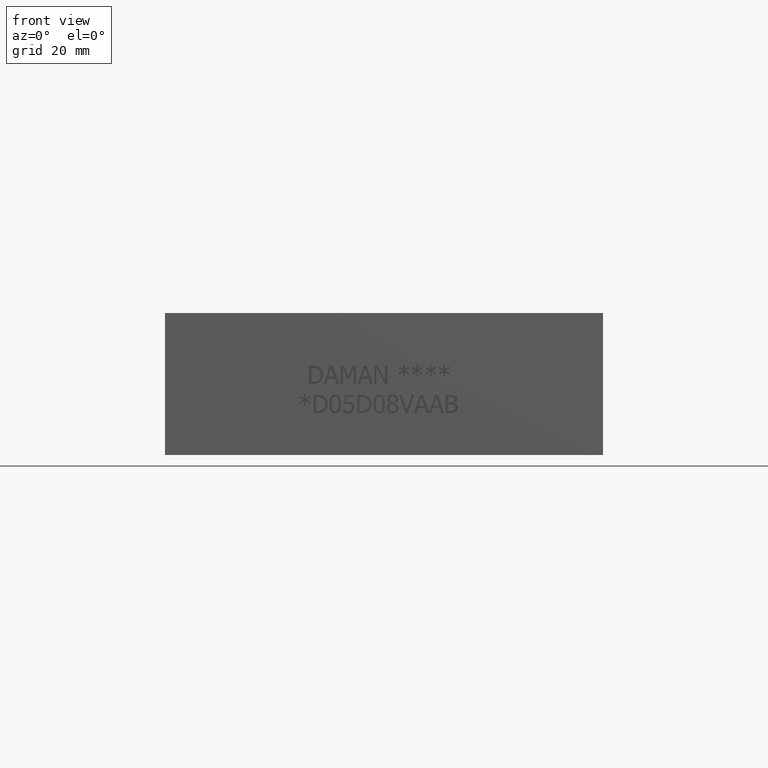
[diagram: clean part render]
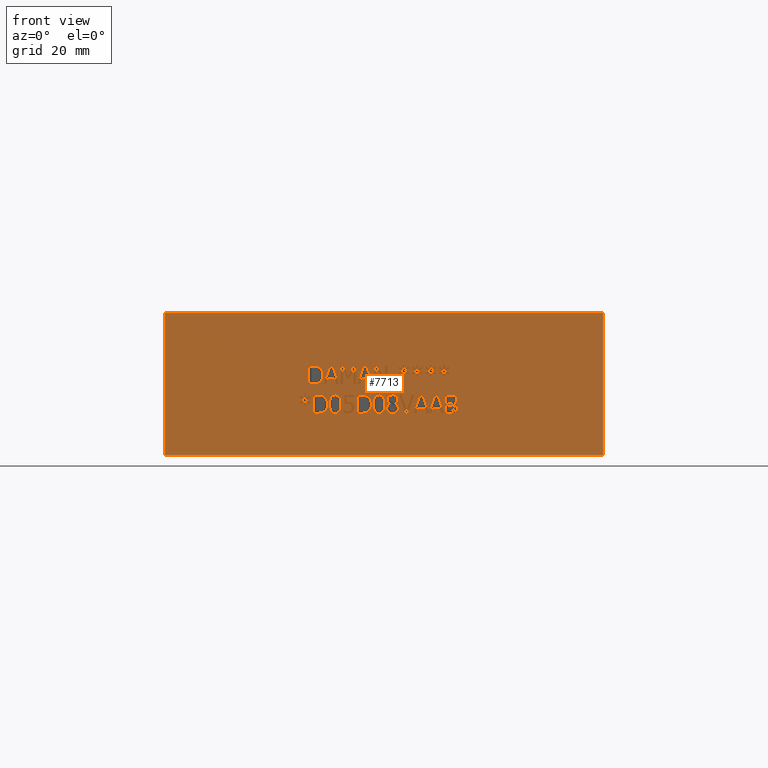
[diagram: same view with one face highlighted and labeled with its STEP entity id]
A machine part, front view. The second image highlights one B-rep face of the part: STEP entity #7713.
In plain terms, the highlighted planar face has unit normal (0, -1, 0).
Its self-contained STEP definition (entity closure, byte-faithful):
#216=FACE_BOUND('',#1150,.T.);
#217=FACE_BOUND('',#1151,.T.);
#218=FACE_BOUND('',#1152,.T.);
#219=FACE_BOUND('',#1153,.T.);
#220=FACE_BOUND('',#1154,.T.);
#221=FACE_BOUND('',#1155,.T.);
#222=FACE_BOUND('',#1156,.T.);
#223=FACE_BOUND('',#1157,.T.);
#224=FACE_BOUND('',#1158,.T.);
#225=FACE_BOUND('',#1159,.T.);
#226=FACE_BOUND('',#1160,.T.);
#227=FACE_BOUND('',#1161,.T.);
#228=FACE_BOUND('',#1162,.T.);
#229=FACE_BOUND('',#1163,.T.);
#230=FACE_BOUND('',#1164,.T.);
#231=FACE_BOUND('',#1165,.T.);
#232=FACE_BOUND('',#1166,.T.);
#233=FACE_BOUND('',#1167,.T.);
#234=FACE_BOUND('',#1168,.T.);
#280=B_SPLINE_CURVE_WITH_KNOTS('',2,(#10114,#10115,#10116,#10117),
 .UNSPECIFIED.,.F.,.F.,(3,1,3),(0.,1.,2.),.UNSPECIFIED.);
#282=B_SPLINE_CURVE_WITH_KNOTS('',2,(#10135,#10136,#10137,#10138),
 .UNSPECIFIED.,.F.,.F.,(3,1,3),(0.,1.,2.),.UNSPECIFIED.);
#284=B_SPLINE_CURVE_WITH_KNOTS('',2,(#10154,#10155,#10156,#10157),
 .UNSPECIFIED.,.F.,.F.,(3,1,3),(0.,1.,2.),.UNSPECIFIED.);
#286=B_SPLINE_CURVE_WITH_KNOTS('',2,(#10203,#10204,#10205,#10206),
 .UNSPECIFIED.,.F.,.F.,(3,1,3),(0.,1.,2.),.UNSPECIFIED.);
#288=B_SPLINE_CURVE_WITH_KNOTS('',2,(#10222,#10223,#10224,#10225),
 .UNSPECIFIED.,.F.,.F.,(3,1,3),(0.,1.,2.),.UNSPECIFIED.);
#290=B_SPLINE_CURVE_WITH_KNOTS('',2,(#10241,#10242,#10243,#10244),
 .UNSPECIFIED.,.F.,.F.,(3,1,3),(0.,1.,2.),.UNSPECIFIED.);
#292=B_SPLINE_CURVE_WITH_KNOTS('',2,(#10260,#10261,#10262,#10263),
 .UNSPECIFIED.,.F.,.F.,(3,1,3),(0.,1.,2.),.UNSPECIFIED.);
#294=B_SPLINE_CURVE_WITH_KNOTS('',2,(#10279,#10280,#10281,#10282),
 .UNSPECIFIED.,.F.,.F.,(3,1,3),(0.,1.,2.),.UNSPECIFIED.);
#296=B_SPLINE_CURVE_WITH_KNOTS('',2,(#10298,#10299,#10300,#10301),
 .UNSPECIFIED.,.F.,.F.,(3,1,3),(0.,1.,2.),.UNSPECIFIED.);
#298=B_SPLINE_CURVE_WITH_KNOTS('',2,(#10317,#10318,#10319,#10320),
 .UNSPECIFIED.,.F.,.F.,(3,1,3),(0.,1.,2.),.UNSPECIFIED.);
#300=B_SPLINE_CURVE_WITH_KNOTS('',2,(#10348,#10349,#10350,#10351),
 .UNSPECIFIED.,.F.,.F.,(3,1,3),(0.,1.,2.),.UNSPECIFIED.);
#302=B_SPLINE_CURVE_WITH_KNOTS('',2,(#10367,#10368,#10369,#10370),
 .UNSPECIFIED.,.F.,.F.,(3,1,3),(0.,1.,2.),.UNSPECIFIED.);
#304=B_SPLINE_CURVE_WITH_KNOTS('',2,(#10385,#10386,#10387,#10388),
 .UNSPECIFIED.,.F.,.F.,(3,1,3),(0.,1.,2.),.UNSPECIFIED.);
#322=B_SPLINE_CURVE_WITH_KNOTS('',2,(#10556,#10557,#10558,#10559),
 .UNSPECIFIED.,.F.,.F.,(3,1,3),(0.,1.,2.),.UNSPECIFIED.);
#324=B_SPLINE_CURVE_WITH_KNOTS('',2,(#10577,#10578,#10579,#10580),
 .UNSPECIFIED.,.F.,.F.,(3,1,3),(0.,1.,2.),.UNSPECIFIED.);
#326=B_SPLINE_CURVE_WITH_KNOTS('',2,(#10596,#10597,#10598,#10599),
 .UNSPECIFIED.,.F.,.F.,(3,1,3),(0.,1.,2.),.UNSPECIFIED.);
#328=B_SPLINE_CURVE_WITH_KNOTS('',2,(#10614,#10615,#10616,#10617),
 .UNSPECIFIED.,.F.,.F.,(3,1,3),(0.,1.,2.),.UNSPECIFIED.);
#338=B_SPLINE_CURVE_WITH_KNOTS('',2,(#10727,#10728,#10729,#10730),
 .UNSPECIFIED.,.F.,.F.,(3,1,3),(0.,1.,2.),.UNSPECIFIED.);
#340=B_SPLINE_CURVE_WITH_KNOTS('',2,(#10748,#10749,#10750,#10751),
 .UNSPECIFIED.,.F.,.F.,(3,1,3),(0.,1.,2.),.UNSPECIFIED.);
#342=B_SPLINE_CURVE_WITH_KNOTS('',2,(#10785,#10786,#10787,#10788),
 .UNSPECIFIED.,.F.,.F.,(3,1,3),(0.,1.,2.),.UNSPECIFIED.);
#344=B_SPLINE_CURVE_WITH_KNOTS('',2,(#10803,#10804,#10805,#10806),
 .UNSPECIFIED.,.F.,.F.,(3,1,3),(0.,1.,2.),.UNSPECIFIED.);
#354=B_SPLINE_CURVE_WITH_KNOTS('',2,(#11025,#11026,#11027,#11028),
 .UNSPECIFIED.,.F.,.F.,(3,1,3),(0.,1.,2.),.UNSPECIFIED.);
#356=B_SPLINE_CURVE_WITH_KNOTS('',2,(#11046,#11047,#11048,#11049),
 .UNSPECIFIED.,.F.,.F.,(3,1,3),(0.,1.,2.),.UNSPECIFIED.);
#358=B_SPLINE_CURVE_WITH_KNOTS('',2,(#11083,#11084,#11085,#11086),
 .UNSPECIFIED.,.F.,.F.,(3,1,3),(0.,1.,2.),.UNSPECIFIED.);
#360=B_SPLINE_CURVE_WITH_KNOTS('',2,(#11101,#11102,#11103,#11104),
 .UNSPECIFIED.,.F.,.F.,(3,1,3),(0.,1.,2.),.UNSPECIFIED.);
#378=B_SPLINE_CURVE_WITH_KNOTS('',2,(#11272,#11273,#11274,#11275),
 .UNSPECIFIED.,.F.,.F.,(3,1,3),(0.,1.,2.),.UNSPECIFIED.);
#380=B_SPLINE_CURVE_WITH_KNOTS('',2,(#11293,#11294,#11295,#11296),
 .UNSPECIFIED.,.F.,.F.,(3,1,3),(0.,1.,2.),.UNSPECIFIED.);
#382=B_SPLINE_CURVE_WITH_KNOTS('',2,(#11312,#11313,#11314,#11315),
 .UNSPECIFIED.,.F.,.F.,(3,1,3),(0.,1.,2.),.UNSPECIFIED.);
#384=B_SPLINE_CURVE_WITH_KNOTS('',2,(#11330,#11331,#11332,#11333),
 .UNSPECIFIED.,.F.,.F.,(3,1,3),(0.,1.,2.),.UNSPECIFIED.);
#406=B_SPLINE_CURVE_WITH_KNOTS('',2,(#11539,#11540,#11541,#11542),
 .UNSPECIFIED.,.F.,.F.,(3,1,3),(0.,1.,2.),.UNSPECIFIED.);
#408=B_SPLINE_CURVE_WITH_KNOTS('',2,(#11560,#11561,#11562,#11563),
 .UNSPECIFIED.,.F.,.F.,(3,1,3),(0.,1.,2.),.UNSPECIFIED.);
#410=B_SPLINE_CURVE_WITH_KNOTS('',2,(#11585,#11586,#11587,#11588),
 .UNSPECIFIED.,.F.,.F.,(3,1,3),(0.,1.,2.),.UNSPECIFIED.);
#412=B_SPLINE_CURVE_WITH_KNOTS('',2,(#11604,#11605,#11606,#11607),
 .UNSPECIFIED.,.F.,.F.,(3,1,3),(0.,1.,2.),.UNSPECIFIED.);
#414=B_SPLINE_CURVE_WITH_KNOTS('',2,(#11623,#11624,#11625,#11626),
 .UNSPECIFIED.,.F.,.F.,(3,1,3),(0.,1.,2.),.UNSPECIFIED.);
#416=B_SPLINE_CURVE_WITH_KNOTS('',2,(#11642,#11643,#11644,#11645),
 .UNSPECIFIED.,.F.,.F.,(3,1,3),(0.,1.,2.),.UNSPECIFIED.);
#418=B_SPLINE_CURVE_WITH_KNOTS('',2,(#11667,#11668,#11669,#11670),
 .UNSPECIFIED.,.F.,.F.,(3,1,3),(0.,1.,2.),.UNSPECIFIED.);
#420=B_SPLINE_CURVE_WITH_KNOTS('',2,(#11686,#11687,#11688,#11689),
 .UNSPECIFIED.,.F.,.F.,(3,1,3),(0.,1.,2.),.UNSPECIFIED.);
#422=B_SPLINE_CURVE_WITH_KNOTS('',2,(#11704,#11705,#11706,#11707),
 .UNSPECIFIED.,.F.,.F.,(3,1,3),(0.,1.,2.),.UNSPECIFIED.);
#440=B_SPLINE_CURVE_WITH_KNOTS('',2,(#12038,#12039,#12040,#12041),
 .UNSPECIFIED.,.F.,.F.,(3,1,3),(0.,1.,2.),.UNSPECIFIED.);
#442=B_SPLINE_CURVE_WITH_KNOTS('',2,(#12065,#12066,#12067,#12068),
 .UNSPECIFIED.,.F.,.F.,(3,1,3),(0.,1.,2.),.UNSPECIFIED.);
#444=B_SPLINE_CURVE_WITH_KNOTS('',2,(#12084,#12085,#12086,#12087),
 .UNSPECIFIED.,.F.,.F.,(3,1,3),(0.,1.,2.),.UNSPECIFIED.);
#446=B_SPLINE_CURVE_WITH_KNOTS('',2,(#12103,#12104,#12105,#12106),
 .UNSPECIFIED.,.F.,.F.,(3,1,3),(0.,1.,2.),.UNSPECIFIED.);
#448=B_SPLINE_CURVE_WITH_KNOTS('',2,(#12140,#12141,#12142,#12143),
 .UNSPECIFIED.,.F.,.F.,(3,1,3),(0.,1.,2.),.UNSPECIFIED.);
#450=B_SPLINE_CURVE_WITH_KNOTS('',2,(#12158,#12159,#12160,#12161),
 .UNSPECIFIED.,.F.,.F.,(3,1,3),(0.,1.,2.),.UNSPECIFIED.);
#452=B_SPLINE_CURVE_WITH_KNOTS('',2,(#12286,#12287,#12288,#12289),
 .UNSPECIFIED.,.F.,.F.,(3,1,3),(0.,1.,2.),.UNSPECIFIED.);
#453=B_SPLINE_CURVE_WITH_KNOTS('',2,(#12291,#12292,#12293,#12294),
 .UNSPECIFIED.,.F.,.F.,(3,1,3),(0.,1.,2.),.UNSPECIFIED.);
#454=B_SPLINE_CURVE_WITH_KNOTS('',2,(#12296,#12297,#12298,#12299),
 .UNSPECIFIED.,.F.,.F.,(3,1,3),(0.,1.,2.),.UNSPECIFIED.);
#455=B_SPLINE_CURVE_WITH_KNOTS('',2,(#12306,#12307,#12308,#12309),
 .UNSPECIFIED.,.F.,.F.,(3,1,3),(0.,1.,2.),.UNSPECIFIED.);
#735=FACE_OUTER_BOUND('',#1149,.T.);
#1149=EDGE_LOOP('',(#5615,#5616,#5617,#5618));
#1150=EDGE_LOOP('',(#5619,#5620,#5621,#5622,#5623,#5624,#5625));
#1151=EDGE_LOOP('',(#5626,#5627,#5628,#5629,#5630,#5631,#5632,#5633,#5634,
#5635,#5636,#5637,#5638,#5639,#5640,#5641,#5642,#5643,#5644,#5645));
#1152=EDGE_LOOP('',(#5646,#5647,#5648,#5649));
#1153=EDGE_LOOP('',(#5650,#5651,#5652,#5653,#5654,#5655,#5656));
#1154=EDGE_LOOP('',(#5657,#5658,#5659,#5660,#5661,#5662,#5663,#5664,#5665,
#5666,#5667,#5668,#5669,#5670,#5671,#5672,#5673,#5674));
#1155=EDGE_LOOP('',(#5675,#5676,#5677,#5678,#5679,#5680,#5681));
#1156=EDGE_LOOP('',(#5682,#5683,#5684,#5685));
#1157=EDGE_LOOP('',(#5686,#5687,#5688,#5689,#5690,#5691,#5692,#5693,#5694,
#5695,#5696));
#1158=EDGE_LOOP('',(#5697,#5698,#5699,#5700,#5701,#5702,#5703,#5704,#5705,
#5706,#5707,#5708,#5709,#5710,#5711));
#1159=EDGE_LOOP('',(#5712,#5713,#5714,#5715,#5716,#5717,#5718,#5719,#5720,
#5721));
#1160=EDGE_LOOP('',(#5722,#5723,#5724,#5725,#5726,#5727,#5728,#5729,#5730,
#5731,#5732,#5733,#5734,#5735,#5736,#5737,#5738,#5739));
#1161=EDGE_LOOP('',(#5740,#5741,#5742,#5743,#5744,#5745,#5746,#5747,#5748,
#5749,#5750,#5751,#5752,#5753,#5754,#5755,#5756,#5757));
#1162=EDGE_LOOP('',(#5758,#5759,#5760,#5761,#5762,#5763,#5764,#5765,#5766,
#5767));
#1163=EDGE_LOOP('',(#5768,#5769,#5770,#5771,#5772,#5773,#5774,#5775));
#1164=EDGE_LOOP('',(#5776,#5777,#5778,#5779,#5780,#5781,#5782));
#1165=EDGE_LOOP('',(#5783,#5784,#5785,#5786,#5787,#5788,#5789,#5790));
#1166=EDGE_LOOP('',(#5791,#5792,#5793,#5794,#5795,#5796,#5797,#5798,#5799,
#5800,#5801,#5802,#5803));
#1167=EDGE_LOOP('',(#5804,#5805,#5806,#5807,#5808,#5809,#5810,#5811,#5812,
#5813,#5814,#5815,#5816,#5817,#5818,#5819,#5820,#5821));
#1168=EDGE_LOOP('',(#5822,#5823,#5824,#5825,#5826,#5827,#5828,#5829,#5830,
#5831,#5832,#5833,#5834,#5835,#5836,#5837,#5838,#5839));
#1444=LINE('',#10064,#2206);
#1448=LINE('',#10072,#2210);
#1451=LINE('',#10078,#2213);
#1454=LINE('',#10084,#2216);
#1457=LINE('',#10090,#2219);
#1460=LINE('',#10096,#2222);
#1463=LINE('',#10101,#2225);
#1469=LINE('',#10166,#2231);
#1472=LINE('',#10172,#2234);
#1475=LINE('',#10178,#2237);
#1478=LINE('',#10184,#2240);
#1481=LINE('',#10190,#2243);
#1491=LINE('',#10329,#2253);
#1494=LINE('',#10335,#2256);
#1527=LINE('',#10760,#2289);
#1530=LINE('',#10766,#2292);
#1533=LINE('',#10772,#2295);
#1537=LINE('',#10815,#2299);
#1541=LINE('',#10823,#2303);
#1544=LINE('',#10829,#2306);
#1547=LINE('',#10835,#2309);
#1550=LINE('',#10841,#2312);
#1553=LINE('',#10847,#2315);
#1556=LINE('',#10853,#2318);
#1559=LINE('',#10859,#2321);
#1562=LINE('',#10865,#2324);
#1565=LINE('',#10871,#2327);
#1568=LINE('',#10877,#2330);
#1571=LINE('',#10883,#2333);
#1574=LINE('',#10889,#2336);
#1577=LINE('',#10895,#2339);
#1580=LINE('',#10901,#2342);
#1583=LINE('',#10907,#2345);
#1586=LINE('',#10913,#2348);
#1589=LINE('',#10918,#2351);
#1607=LINE('',#11058,#2369);
#1610=LINE('',#11064,#2372);
#1613=LINE('',#11070,#2375);
#1642=LINE('',#11572,#2404);
#1649=LINE('',#11654,#2411);
#1666=LINE('',#11739,#2428);
#1667=LINE('',#11743,#2429);
#1671=LINE('',#11751,#2433);
#1674=LINE('',#11757,#2436);
#1677=LINE('',#11763,#2439);
#1680=LINE('',#11769,#2442);
#1683=LINE('',#11774,#2445);
#1685=LINE('',#11778,#2447);
#1697=LINE('',#11803,#2459);
#1701=LINE('',#11811,#2463);
#1704=LINE('',#11817,#2466);
#1707=LINE('',#11822,#2469);
#1709=LINE('',#11826,#2471);
#1712=LINE('',#11832,#2474);
#1715=LINE('',#11837,#2477);
#1745=LINE('',#12052,#2507);
#1751=LINE('',#12115,#2513);
#1754=LINE('',#12121,#2516);
#1757=LINE('',#12127,#2519);
#1761=LINE('',#12170,#2523);
#1762=LINE('',#12172,#2524);
#1763=LINE('',#12174,#2525);
#1764=LINE('',#12175,#2526);
#1765=LINE('',#12178,#2527);
#1766=LINE('',#12180,#2528);
#1767=LINE('',#12182,#2529);
#1768=LINE('',#12184,#2530);
#1769=LINE('',#12186,#2531);
#1770=LINE('',#12188,#2532);
#1771=LINE('',#12190,#2533);
#1772=LINE('',#12192,#2534);
#1773=LINE('',#12194,#2535);
#1774=LINE('',#12196,#2536);
#1775=LINE('',#12198,#2537);
#1776=LINE('',#12200,#2538);
#1777=LINE('',#12202,#2539);
#1778=LINE('',#12204,#2540);
#1779=LINE('',#12206,#2541);
#1780=LINE('',#12208,#2542);
#1781=LINE('',#12210,#2543);
#1782=LINE('',#12211,#2544);
#1783=LINE('',#12214,#2545);
#1784=LINE('',#12216,#2546);
#1785=LINE('',#12218,#2547);
#1786=LINE('',#12220,#2548);
#1787=LINE('',#12222,#2549);
#1788=LINE('',#12224,#2550);
#1789=LINE('',#12226,#2551);
#1790=LINE('',#12228,#2552);
#1791=LINE('',#12230,#2553);
#1792=LINE('',#12232,#2554);
#1793=LINE('',#12234,#2555);
#1794=LINE('',#12236,#2556);
#1795=LINE('',#12238,#2557);
#1796=LINE('',#12240,#2558);
#1797=LINE('',#12242,#2559);
#1798=LINE('',#12244,#2560);
#1799=LINE('',#12246,#2561);
#1800=LINE('',#12247,#2562);
#1801=LINE('',#12250,#2563);
#1802=LINE('',#12252,#2564);
#1803=LINE('',#12254,#2565);
#1804=LINE('',#12256,#2566);
#1805=LINE('',#12258,#2567);
#1806=LINE('',#12260,#2568);
#1807=LINE('',#12262,#2569);
#1808=LINE('',#12264,#2570);
#1809=LINE('',#12266,#2571);
#1810=LINE('',#12267,#2572);
#1811=LINE('',#12270,#2573);
#1812=LINE('',#12272,#2574);
#1813=LINE('',#12274,#2575);
#1814=LINE('',#12276,#2576);
#1815=LINE('',#12278,#2577);
#1816=LINE('',#12280,#2578);
#1817=LINE('',#12282,#2579);
#1818=LINE('',#12283,#2580);
#1819=LINE('',#12301,#2581);
#1820=LINE('',#12303,#2582);
#1821=LINE('',#12305,#2583);
#1822=LINE('',#12312,#2584);
#1823=LINE('',#12314,#2585);
#1824=LINE('',#12316,#2586);
#1825=LINE('',#12318,#2587);
#1826=LINE('',#12320,#2588);
#1827=LINE('',#12322,#2589);
#1828=LINE('',#12324,#2590);
#1829=LINE('',#12325,#2591);
#1830=LINE('',#12328,#2592);
#1831=LINE('',#12330,#2593);
#1832=LINE('',#12332,#2594);
#1833=LINE('',#12334,#2595);
#1834=LINE('',#12336,#2596);
#1835=LINE('',#12338,#2597);
#1836=LINE('',#12340,#2598);
#1837=LINE('',#12342,#2599);
#1838=LINE('',#12344,#2600);
#1839=LINE('',#12346,#2601);
#1840=LINE('',#12348,#2602);
#1841=LINE('',#12350,#2603);
#1842=LINE('',#12351,#2604);
#1843=LINE('',#12354,#2605);
#1844=LINE('',#12356,#2606);
#1845=LINE('',#12358,#2607);
#1846=LINE('',#12360,#2608);
#1847=LINE('',#12362,#2609);
#1848=LINE('',#12364,#2610);
#1849=LINE('',#12366,#2611);
#1850=LINE('',#12368,#2612);
#1851=LINE('',#12370,#2613);
#1852=LINE('',#12372,#2614);
#1853=LINE('',#12374,#2615);
#1854=LINE('',#12376,#2616);
#1855=LINE('',#12378,#2617);
#1856=LINE('',#12380,#2618);
#1857=LINE('',#12382,#2619);
#1858=LINE('',#12384,#2620);
#1859=LINE('',#12386,#2621);
#1860=LINE('',#12387,#2622);
#1861=LINE('',#12390,#2623);
#1862=LINE('',#12392,#2624);
#1863=LINE('',#12394,#2625);
#1864=LINE('',#12396,#2626);
#1865=LINE('',#12398,#2627);
#1866=LINE('',#12400,#2628);
#1867=LINE('',#12402,#2629);
#1868=LINE('',#12404,#2630);
#1869=LINE('',#12406,#2631);
#1870=LINE('',#12408,#2632);
#1871=LINE('',#12410,#2633);
#1872=LINE('',#12412,#2634);
#1873=LINE('',#12414,#2635);
#1874=LINE('',#12416,#2636);
#1875=LINE('',#12418,#2637);
#1876=LINE('',#12420,#2638);
#1877=LINE('',#12422,#2639);
#1878=LINE('',#12423,#2640);
#2206=VECTOR('',#8408,10.);
#2210=VECTOR('',#8414,10.);
#2213=VECTOR('',#8419,10.);
#2216=VECTOR('',#8424,10.);
#2219=VECTOR('',#8429,10.);
#2222=VECTOR('',#8434,10.);
#2225=VECTOR('',#8439,10.);
#2231=VECTOR('',#8449,10.);
#2234=VECTOR('',#8454,10.);
#2237=VECTOR('',#8459,10.);
#2240=VECTOR('',#8464,10.);
#2243=VECTOR('',#8469,10.);
#2253=VECTOR('',#8481,10.);
#2256=VECTOR('',#8486,10.);
#2289=VECTOR('',#8531,10.);
#2292=VECTOR('',#8536,10.);
#2295=VECTOR('',#8541,10.);
#2299=VECTOR('',#8549,10.);
#2303=VECTOR('',#8555,10.);
#2306=VECTOR('',#8560,10.);
#2309=VECTOR('',#8565,10.);
#2312=VECTOR('',#8570,10.);
#2315=VECTOR('',#8575,10.);
#2318=VECTOR('',#8580,10.);
#2321=VECTOR('',#8585,10.);
#2324=VECTOR('',#8590,10.);
#2327=VECTOR('',#8595,10.);
#2330=VECTOR('',#8600,10.);
#2333=VECTOR('',#8605,10.);
#2336=VECTOR('',#8610,10.);
#2339=VECTOR('',#8615,10.);
#2342=VECTOR('',#8620,10.);
#2345=VECTOR('',#8625,10.);
#2348=VECTOR('',#8630,10.);
#2351=VECTOR('',#8635,10.);
#2369=VECTOR('',#8663,10.);
#2372=VECTOR('',#8668,10.);
#2375=VECTOR('',#8673,10.);
#2404=VECTOR('',#8708,10.);
#2411=VECTOR('',#8717,10.);
#2428=VECTOR('',#8744,10.);
#2429=VECTOR('',#8747,10.);
#2433=VECTOR('',#8753,10.);
#2436=VECTOR('',#8758,10.);
#2439=VECTOR('',#8763,10.);
#2442=VECTOR('',#8768,10.);
#2445=VECTOR('',#8773,10.);
#2447=VECTOR('',#8777,10.);
#2459=VECTOR('',#8797,10.);
#2463=VECTOR('',#8803,10.);
#2466=VECTOR('',#8808,10.);
#2469=VECTOR('',#8813,10.);
#2471=VECTOR('',#8817,10.);
#2474=VECTOR('',#8822,10.);
#2477=VECTOR('',#8827,10.);
#2507=VECTOR('',#8873,10.);
#2513=VECTOR('',#8881,10.);
#2516=VECTOR('',#8886,10.);
#2519=VECTOR('',#8891,10.);
#2523=VECTOR('',#8899,10.);
#2524=VECTOR('',#8900,10.);
#2525=VECTOR('',#8901,10.);
#2526=VECTOR('',#8902,10.);
#2527=VECTOR('',#8903,10.);
#2528=VECTOR('',#8904,10.);
#2529=VECTOR('',#8905,10.);
#2530=VECTOR('',#8906,10.);
#2531=VECTOR('',#8907,10.);
#2532=VECTOR('',#8908,10.);
#2533=VECTOR('',#8909,10.);
#2534=VECTOR('',#8910,10.);
#2535=VECTOR('',#8911,10.);
#2536=VECTOR('',#8912,10.);
#2537=VECTOR('',#8913,10.);
#2538=VECTOR('',#8914,10.);
#2539=VECTOR('',#8915,10.);
#2540=VECTOR('',#8916,10.);
#2541=VECTOR('',#8917,10.);
#2542=VECTOR('',#8918,10.);
#2543=VECTOR('',#8919,10.);
#2544=VECTOR('',#8920,10.);
#2545=VECTOR('',#8921,10.);
#2546=VECTOR('',#8922,10.);
#2547=VECTOR('',#8923,10.);
#2548=VECTOR('',#8924,10.);
#2549=VECTOR('',#8925,10.);
#2550=VECTOR('',#8926,10.);
#2551=VECTOR('',#8927,10.);
#2552=VECTOR('',#8928,10.);
#2553=VECTOR('',#8929,10.);
#2554=VECTOR('',#8930,10.);
#2555=VECTOR('',#8931,10.);
#2556=VECTOR('',#8932,10.);
#2557=VECTOR('',#8933,10.);
#2558=VECTOR('',#8934,10.);
#2559=VECTOR('',#8935,10.);
#2560=VECTOR('',#8936,10.);
#2561=VECTOR('',#8937,10.);
#2562=VECTOR('',#8938,10.);
#2563=VECTOR('',#8939,10.);
#2564=VECTOR('',#8940,10.);
#2565=VECTOR('',#8941,10.);
#2566=VECTOR('',#8942,10.);
#2567=VECTOR('',#8943,10.);
#2568=VECTOR('',#8944,10.);
#2569=VECTOR('',#8945,10.);
#2570=VECTOR('',#8946,10.);
#2571=VECTOR('',#8947,10.);
#2572=VECTOR('',#8948,10.);
#2573=VECTOR('',#8949,10.);
#2574=VECTOR('',#8950,10.);
#2575=VECTOR('',#8951,10.);
#2576=VECTOR('',#8952,10.);
#2577=VECTOR('',#8953,10.);
#2578=VECTOR('',#8954,10.);
#2579=VECTOR('',#8955,10.);
#2580=VECTOR('',#8956,10.);
#2581=VECTOR('',#8957,10.);
#2582=VECTOR('',#8958,10.);
#2583=VECTOR('',#8959,10.);
#2584=VECTOR('',#8960,10.);
#2585=VECTOR('',#8961,10.);
#2586=VECTOR('',#8962,10.);
#2587=VECTOR('',#8963,10.);
#2588=VECTOR('',#8964,10.);
#2589=VECTOR('',#8965,10.);
#2590=VECTOR('',#8966,10.);
#2591=VECTOR('',#8967,10.);
#2592=VECTOR('',#8968,10.);
#2593=VECTOR('',#8969,10.);
#2594=VECTOR('',#8970,10.);
#2595=VECTOR('',#8971,10.);
#2596=VECTOR('',#8972,10.);
#2597=VECTOR('',#8973,10.);
#2598=VECTOR('',#8974,10.);
#2599=VECTOR('',#8975,10.);
#2600=VECTOR('',#8976,10.);
#2601=VECTOR('',#8977,10.);
#2602=VECTOR('',#8978,10.);
#2603=VECTOR('',#8979,10.);
#2604=VECTOR('',#8980,10.);
#2605=VECTOR('',#8981,10.);
#2606=VECTOR('',#8982,10.);
#2607=VECTOR('',#8983,10.);
#2608=VECTOR('',#8984,10.);
#2609=VECTOR('',#8985,10.);
#2610=VECTOR('',#8986,10.);
#2611=VECTOR('',#8987,10.);
#2612=VECTOR('',#8988,10.);
#2613=VECTOR('',#8989,10.);
#2614=VECTOR('',#8990,10.);
#2615=VECTOR('',#8991,10.);
#2616=VECTOR('',#8992,10.);
#2617=VECTOR('',#8993,10.);
#2618=VECTOR('',#8994,10.);
#2619=VECTOR('',#8995,10.);
#2620=VECTOR('',#8996,10.);
#2621=VECTOR('',#8997,10.);
#2622=VECTOR('',#8998,10.);
#2623=VECTOR('',#8999,10.);
#2624=VECTOR('',#9000,10.);
#2625=VECTOR('',#9001,10.);
#2626=VECTOR('',#9002,10.);
#2627=VECTOR('',#9003,10.);
#2628=VECTOR('',#9004,10.);
#2629=VECTOR('',#9005,10.);
#2630=VECTOR('',#9006,10.);
#2631=VECTOR('',#9007,10.);
#2632=VECTOR('',#9008,10.);
#2633=VECTOR('',#9009,10.);
#2634=VECTOR('',#9010,10.);
#2635=VECTOR('',#9011,10.);
#2636=VECTOR('',#9012,10.);
#2637=VECTOR('',#9013,10.);
#2638=VECTOR('',#9014,10.);
#2639=VECTOR('',#9015,10.);
#2640=VECTOR('',#9016,10.);
#2968=VERTEX_POINT('',#10062);
#2969=VERTEX_POINT('',#10063);
#2972=VERTEX_POINT('',#10071);
#2974=VERTEX_POINT('',#10077);
#2976=VERTEX_POINT('',#10083);
#2978=VERTEX_POINT('',#10089);
#2980=VERTEX_POINT('',#10095);
#2982=VERTEX_POINT('',#10112);
#2983=VERTEX_POINT('',#10113);
#2986=VERTEX_POINT('',#10134);
#2988=VERTEX_POINT('',#10153);
#2990=VERTEX_POINT('',#10165);
#2992=VERTEX_POINT('',#10171);
#2994=VERTEX_POINT('',#10177);
#2996=VERTEX_POINT('',#10183);
#2998=VERTEX_POINT('',#10189);
#3000=VERTEX_POINT('',#10202);
#3002=VERTEX_POINT('',#10221);
#3004=VERTEX_POINT('',#10240);
#3006=VERTEX_POINT('',#10259);
#3008=VERTEX_POINT('',#10278);
#3010=VERTEX_POINT('',#10297);
#3012=VERTEX_POINT('',#10316);
#3014=VERTEX_POINT('',#10328);
#3016=VERTEX_POINT('',#10334);
#3018=VERTEX_POINT('',#10347);
#3020=VERTEX_POINT('',#10366);
#3038=VERTEX_POINT('',#10554);
#3039=VERTEX_POINT('',#10555);
#3042=VERTEX_POINT('',#10576);
#3044=VERTEX_POINT('',#10595);
#3060=VERTEX_POINT('',#10725);
#3061=VERTEX_POINT('',#10726);
#3064=VERTEX_POINT('',#10747);
#3066=VERTEX_POINT('',#10759);
#3068=VERTEX_POINT('',#10765);
#3070=VERTEX_POINT('',#10771);
#3072=VERTEX_POINT('',#10784);
#3074=VERTEX_POINT('',#10813);
#3075=VERTEX_POINT('',#10814);
#3078=VERTEX_POINT('',#10822);
#3080=VERTEX_POINT('',#10828);
#3082=VERTEX_POINT('',#10834);
#3084=VERTEX_POINT('',#10840);
#3086=VERTEX_POINT('',#10846);
#3088=VERTEX_POINT('',#10852);
#3090=VERTEX_POINT('',#10858);
#3092=VERTEX_POINT('',#10864);
#3094=VERTEX_POINT('',#10870);
#3096=VERTEX_POINT('',#10876);
#3098=VERTEX_POINT('',#10882);
#3100=VERTEX_POINT('',#10888);
#3102=VERTEX_POINT('',#10894);
#3104=VERTEX_POINT('',#10900);
#3106=VERTEX_POINT('',#10906);
#3108=VERTEX_POINT('',#10912);
#3124=VERTEX_POINT('',#11023);
#3125=VERTEX_POINT('',#11024);
#3128=VERTEX_POINT('',#11045);
#3130=VERTEX_POINT('',#11057);
#3132=VERTEX_POINT('',#11063);
#3134=VERTEX_POINT('',#11069);
#3136=VERTEX_POINT('',#11082);
#3154=VERTEX_POINT('',#11270);
#3155=VERTEX_POINT('',#11271);
#3158=VERTEX_POINT('',#11292);
#3160=VERTEX_POINT('',#11311);
#3182=VERTEX_POINT('',#11537);
#3183=VERTEX_POINT('',#11538);
#3186=VERTEX_POINT('',#11559);
#3188=VERTEX_POINT('',#11571);
#3190=VERTEX_POINT('',#11584);
#3192=VERTEX_POINT('',#11603);
#3194=VERTEX_POINT('',#11622);
#3196=VERTEX_POINT('',#11641);
#3198=VERTEX_POINT('',#11653);
#3200=VERTEX_POINT('',#11666);
#3202=VERTEX_POINT('',#11685);
#3210=VERTEX_POINT('',#11732);
#3213=VERTEX_POINT('',#11737);
#3214=VERTEX_POINT('',#11741);
#3215=VERTEX_POINT('',#11742);
#3218=VERTEX_POINT('',#11750);
#3220=VERTEX_POINT('',#11756);
#3222=VERTEX_POINT('',#11762);
#3224=VERTEX_POINT('',#11768);
#3226=VERTEX_POINT('',#11777);
#3234=VERTEX_POINT('',#11801);
#3235=VERTEX_POINT('',#11802);
#3238=VERTEX_POINT('',#11810);
#3240=VERTEX_POINT('',#11816);
#3242=VERTEX_POINT('',#11825);
#3244=VERTEX_POINT('',#11831);
#3274=VERTEX_POINT('',#12036);
#3275=VERTEX_POINT('',#12037);
#3278=VERTEX_POINT('',#12051);
#3280=VERTEX_POINT('',#12064);
#3282=VERTEX_POINT('',#12083);
#3284=VERTEX_POINT('',#12102);
#3286=VERTEX_POINT('',#12114);
#3288=VERTEX_POINT('',#12120);
#3290=VERTEX_POINT('',#12126);
#3292=VERTEX_POINT('',#12139);
#3294=VERTEX_POINT('',#12168);
#3295=VERTEX_POINT('',#12169);
#3296=VERTEX_POINT('',#12171);
#3297=VERTEX_POINT('',#12173);
#3298=VERTEX_POINT('',#12176);
#3299=VERTEX_POINT('',#12177);
#3300=VERTEX_POINT('',#12179);
#3301=VERTEX_POINT('',#12181);
#3302=VERTEX_POINT('',#12183);
#3303=VERTEX_POINT('',#12185);
#3304=VERTEX_POINT('',#12187);
#3305=VERTEX_POINT('',#12189);
#3306=VERTEX_POINT('',#12191);
#3307=VERTEX_POINT('',#12193);
#3308=VERTEX_POINT('',#12195);
#3309=VERTEX_POINT('',#12197);
#3310=VERTEX_POINT('',#12199);
#3311=VERTEX_POINT('',#12201);
#3312=VERTEX_POINT('',#12203);
#3313=VERTEX_POINT('',#12205);
#3314=VERTEX_POINT('',#12207);
#3315=VERTEX_POINT('',#12209);
#3316=VERTEX_POINT('',#12212);
#3317=VERTEX_POINT('',#12213);
#3318=VERTEX_POINT('',#12215);
#3319=VERTEX_POINT('',#12217);
#3320=VERTEX_POINT('',#12219);
#3321=VERTEX_POINT('',#12221);
#3322=VERTEX_POINT('',#12223);
#3323=VERTEX_POINT('',#12225);
#3324=VERTEX_POINT('',#12227);
#3325=VERTEX_POINT('',#12229);
#3326=VERTEX_POINT('',#12231);
#3327=VERTEX_POINT('',#12233);
#3328=VERTEX_POINT('',#12235);
#3329=VERTEX_POINT('',#12237);
#3330=VERTEX_POINT('',#12239);
#3331=VERTEX_POINT('',#12241);
#3332=VERTEX_POINT('',#12243);
#3333=VERTEX_POINT('',#12245);
#3334=VERTEX_POINT('',#12248);
#3335=VERTEX_POINT('',#12249);
#3336=VERTEX_POINT('',#12251);
#3337=VERTEX_POINT('',#12253);
#3338=VERTEX_POINT('',#12255);
#3339=VERTEX_POINT('',#12257);
#3340=VERTEX_POINT('',#12259);
#3341=VERTEX_POINT('',#12261);
#3342=VERTEX_POINT('',#12263);
#3343=VERTEX_POINT('',#12265);
#3344=VERTEX_POINT('',#12268);
#3345=VERTEX_POINT('',#12269);
#3346=VERTEX_POINT('',#12271);
#3347=VERTEX_POINT('',#12273);
#3348=VERTEX_POINT('',#12275);
#3349=VERTEX_POINT('',#12277);
#3350=VERTEX_POINT('',#12279);
#3351=VERTEX_POINT('',#12281);
#3352=VERTEX_POINT('',#12284);
#3353=VERTEX_POINT('',#12285);
#3354=VERTEX_POINT('',#12290);
#3355=VERTEX_POINT('',#12295);
#3356=VERTEX_POINT('',#12300);
#3357=VERTEX_POINT('',#12302);
#3358=VERTEX_POINT('',#12304);
#3359=VERTEX_POINT('',#12310);
#3360=VERTEX_POINT('',#12311);
#3361=VERTEX_POINT('',#12313);
#3362=VERTEX_POINT('',#12315);
#3363=VERTEX_POINT('',#12317);
#3364=VERTEX_POINT('',#12319);
#3365=VERTEX_POINT('',#12321);
#3366=VERTEX_POINT('',#12323);
#3367=VERTEX_POINT('',#12326);
#3368=VERTEX_POINT('',#12327);
#3369=VERTEX_POINT('',#12329);
#3370=VERTEX_POINT('',#12331);
#3371=VERTEX_POINT('',#12333);
#3372=VERTEX_POINT('',#12335);
#3373=VERTEX_POINT('',#12337);
#3374=VERTEX_POINT('',#12339);
#3375=VERTEX_POINT('',#12341);
#3376=VERTEX_POINT('',#12343);
#3377=VERTEX_POINT('',#12345);
#3378=VERTEX_POINT('',#12347);
#3379=VERTEX_POINT('',#12349);
#3380=VERTEX_POINT('',#12352);
#3381=VERTEX_POINT('',#12353);
#3382=VERTEX_POINT('',#12355);
#3383=VERTEX_POINT('',#12357);
#3384=VERTEX_POINT('',#12359);
#3385=VERTEX_POINT('',#12361);
#3386=VERTEX_POINT('',#12363);
#3387=VERTEX_POINT('',#12365);
#3388=VERTEX_POINT('',#12367);
#3389=VERTEX_POINT('',#12369);
#3390=VERTEX_POINT('',#12371);
#3391=VERTEX_POINT('',#12373);
#3392=VERTEX_POINT('',#12375);
#3393=VERTEX_POINT('',#12377);
#3394=VERTEX_POINT('',#12379);
#3395=VERTEX_POINT('',#12381);
#3396=VERTEX_POINT('',#12383);
#3397=VERTEX_POINT('',#12385);
#3398=VERTEX_POINT('',#12388);
#3399=VERTEX_POINT('',#12389);
#3400=VERTEX_POINT('',#12391);
#3401=VERTEX_POINT('',#12393);
#3402=VERTEX_POINT('',#12395);
#3403=VERTEX_POINT('',#12397);
#3404=VERTEX_POINT('',#12399);
#3405=VERTEX_POINT('',#12401);
#3406=VERTEX_POINT('',#12403);
#3407=VERTEX_POINT('',#12405);
#3408=VERTEX_POINT('',#12407);
#3409=VERTEX_POINT('',#12409);
#3410=VERTEX_POINT('',#12411);
#3411=VERTEX_POINT('',#12413);
#3412=VERTEX_POINT('',#12415);
#3413=VERTEX_POINT('',#12417);
#3414=VERTEX_POINT('',#12419);
#3415=VERTEX_POINT('',#12421);
#3714=EDGE_CURVE('',#2968,#2969,#1444,.T.);
#3718=EDGE_CURVE('',#2972,#2968,#1448,.T.);
#3721=EDGE_CURVE('',#2974,#2972,#1451,.T.);
#3724=EDGE_CURVE('',#2976,#2974,#1454,.T.);
#3727=EDGE_CURVE('',#2978,#2976,#1457,.T.);
#3730=EDGE_CURVE('',#2980,#2978,#1460,.T.);
#3733=EDGE_CURVE('',#2969,#2980,#1463,.T.);
#3735=EDGE_CURVE('',#2982,#2983,#280,.T.);
#3739=EDGE_CURVE('',#2986,#2982,#282,.T.);
#3742=EDGE_CURVE('',#2988,#2986,#284,.T.);
#3745=EDGE_CURVE('',#2990,#2988,#1469,.T.);
#3748=EDGE_CURVE('',#2992,#2990,#1472,.T.);
#3751=EDGE_CURVE('',#2994,#2992,#1475,.T.);
#3754=EDGE_CURVE('',#2996,#2994,#1478,.T.);
#3757=EDGE_CURVE('',#2998,#2996,#1481,.T.);
#3760=EDGE_CURVE('',#3000,#2998,#286,.T.);
#3763=EDGE_CURVE('',#3002,#3000,#288,.T.);
#3766=EDGE_CURVE('',#3004,#3002,#290,.T.);
#3769=EDGE_CURVE('',#3006,#3004,#292,.T.);
#3772=EDGE_CURVE('',#3008,#3006,#294,.T.);
#3775=EDGE_CURVE('',#3010,#3008,#296,.T.);
#3778=EDGE_CURVE('',#3012,#3010,#298,.T.);
#3781=EDGE_CURVE('',#3014,#3012,#1491,.T.);
#3784=EDGE_CURVE('',#3016,#3014,#1494,.T.);
#3787=EDGE_CURVE('',#3018,#3016,#300,.T.);
#3790=EDGE_CURVE('',#3020,#3018,#302,.T.);
#3793=EDGE_CURVE('',#2983,#3020,#304,.T.);
#3819=EDGE_CURVE('',#3038,#3039,#322,.T.);
#3823=EDGE_CURVE('',#3042,#3038,#324,.T.);
#3826=EDGE_CURVE('',#3044,#3042,#326,.T.);
#3829=EDGE_CURVE('',#3039,#3044,#328,.T.);
#3852=EDGE_CURVE('',#3060,#3061,#338,.T.);
#3856=EDGE_CURVE('',#3064,#3060,#340,.T.);
#3859=EDGE_CURVE('',#3066,#3064,#1527,.T.);
#3862=EDGE_CURVE('',#3068,#3066,#1530,.T.);
#3865=EDGE_CURVE('',#3070,#3068,#1533,.T.);
#3868=EDGE_CURVE('',#3072,#3070,#342,.T.);
#3871=EDGE_CURVE('',#3061,#3072,#344,.T.);
#3873=EDGE_CURVE('',#3074,#3075,#1537,.T.);
#3877=EDGE_CURVE('',#3078,#3074,#1541,.T.);
#3880=EDGE_CURVE('',#3080,#3078,#1544,.T.);
#3883=EDGE_CURVE('',#3082,#3080,#1547,.T.);
#3886=EDGE_CURVE('',#3084,#3082,#1550,.T.);
#3889=EDGE_CURVE('',#3086,#3084,#1553,.T.);
#3892=EDGE_CURVE('',#3088,#3086,#1556,.T.);
#3895=EDGE_CURVE('',#3090,#3088,#1559,.T.);
#3898=EDGE_CURVE('',#3092,#3090,#1562,.T.);
#3901=EDGE_CURVE('',#3094,#3092,#1565,.T.);
#3904=EDGE_CURVE('',#3096,#3094,#1568,.T.);
#3907=EDGE_CURVE('',#3098,#3096,#1571,.T.);
#3910=EDGE_CURVE('',#3100,#3098,#1574,.T.);
#3913=EDGE_CURVE('',#3102,#3100,#1577,.T.);
#3916=EDGE_CURVE('',#3104,#3102,#1580,.T.);
#3919=EDGE_CURVE('',#3106,#3104,#1583,.T.);
#3922=EDGE_CURVE('',#3108,#3106,#1586,.T.);
#3925=EDGE_CURVE('',#3075,#3108,#1589,.T.);
#3948=EDGE_CURVE('',#3124,#3125,#354,.T.);
#3952=EDGE_CURVE('',#3128,#3124,#356,.T.);
#3955=EDGE_CURVE('',#3130,#3128,#1607,.T.);
#3958=EDGE_CURVE('',#3132,#3130,#1610,.T.);
#3961=EDGE_CURVE('',#3134,#3132,#1613,.T.);
#3964=EDGE_CURVE('',#3136,#3134,#358,.T.);
#3967=EDGE_CURVE('',#3125,#3136,#360,.T.);
#3993=EDGE_CURVE('',#3154,#3155,#378,.T.);
#3997=EDGE_CURVE('',#3158,#3154,#380,.T.);
#4000=EDGE_CURVE('',#3160,#3158,#382,.T.);
#4003=EDGE_CURVE('',#3155,#3160,#384,.T.);
#4035=EDGE_CURVE('',#3182,#3183,#406,.T.);
#4039=EDGE_CURVE('',#3186,#3182,#408,.T.);
#4042=EDGE_CURVE('',#3188,#3186,#1642,.T.);
#4045=EDGE_CURVE('',#3190,#3188,#410,.T.);
#4048=EDGE_CURVE('',#3192,#3190,#412,.T.);
#4051=EDGE_CURVE('',#3194,#3192,#414,.T.);
#4054=EDGE_CURVE('',#3196,#3194,#416,.T.);
#4057=EDGE_CURVE('',#3198,#3196,#1649,.T.);
#4060=EDGE_CURVE('',#3200,#3198,#418,.T.);
#4063=EDGE_CURVE('',#3202,#3200,#420,.T.);
#4066=EDGE_CURVE('',#3183,#3202,#422,.T.);
#4080=EDGE_CURVE('',#3210,#3213,#1666,.T.);
#4081=EDGE_CURVE('',#3214,#3215,#1667,.T.);
#4085=EDGE_CURVE('',#3218,#3214,#1671,.T.);
#4088=EDGE_CURVE('',#3220,#3218,#1674,.T.);
#4091=EDGE_CURVE('',#3222,#3220,#1677,.T.);
#4094=EDGE_CURVE('',#3224,#3222,#1680,.T.);
#4097=EDGE_CURVE('',#3213,#3224,#1683,.T.);
#4099=EDGE_CURVE('',#3215,#3226,#1685,.T.);
#4111=EDGE_CURVE('',#3234,#3235,#1697,.T.);
#4115=EDGE_CURVE('',#3238,#3234,#1701,.T.);
#4118=EDGE_CURVE('',#3240,#3238,#1704,.T.);
#4121=EDGE_CURVE('',#3226,#3240,#1707,.T.);
#4123=EDGE_CURVE('',#3242,#3210,#1709,.T.);
#4126=EDGE_CURVE('',#3244,#3242,#1712,.T.);
#4129=EDGE_CURVE('',#3235,#3244,#1715,.T.);
#4173=EDGE_CURVE('',#3274,#3275,#440,.T.);
#4177=EDGE_CURVE('',#3278,#3274,#1745,.T.);
#4180=EDGE_CURVE('',#3280,#3278,#442,.T.);
#4183=EDGE_CURVE('',#3282,#3280,#444,.T.);
#4186=EDGE_CURVE('',#3284,#3282,#446,.T.);
#4189=EDGE_CURVE('',#3286,#3284,#1751,.T.);
#4192=EDGE_CURVE('',#3288,#3286,#1754,.T.);
#4195=EDGE_CURVE('',#3290,#3288,#1757,.T.);
#4198=EDGE_CURVE('',#3292,#3290,#448,.T.);
#4201=EDGE_CURVE('',#3275,#3292,#450,.T.);
#4203=EDGE_CURVE('',#3294,#3295,#1761,.T.);
#4204=EDGE_CURVE('',#3295,#3296,#1762,.T.);
#4205=EDGE_CURVE('',#3297,#3296,#1763,.T.);
#4206=EDGE_CURVE('',#3294,#3297,#1764,.T.);
#4207=EDGE_CURVE('',#3298,#3299,#1765,.T.);
#4208=EDGE_CURVE('',#3299,#3300,#1766,.T.);
#4209=EDGE_CURVE('',#3300,#3301,#1767,.T.);
#4210=EDGE_CURVE('',#3301,#3302,#1768,.T.);
#4211=EDGE_CURVE('',#3302,#3303,#1769,.T.);
#4212=EDGE_CURVE('',#3303,#3304,#1770,.T.);
#4213=EDGE_CURVE('',#3304,#3305,#1771,.T.);
#4214=EDGE_CURVE('',#3305,#3306,#1772,.T.);
#4215=EDGE_CURVE('',#3306,#3307,#1773,.T.);
#4216=EDGE_CURVE('',#3307,#3308,#1774,.T.);
#4217=EDGE_CURVE('',#3308,#3309,#1775,.T.);
#4218=EDGE_CURVE('',#3309,#3310,#1776,.T.);
#4219=EDGE_CURVE('',#3310,#3311,#1777,.T.);
#4220=EDGE_CURVE('',#3311,#3312,#1778,.T.);
#4221=EDGE_CURVE('',#3312,#3313,#1779,.T.);
#4222=EDGE_CURVE('',#3313,#3314,#1780,.T.);
#4223=EDGE_CURVE('',#3314,#3315,#1781,.T.);
#4224=EDGE_CURVE('',#3315,#3298,#1782,.T.);
#4225=EDGE_CURVE('',#3316,#3317,#1783,.T.);
#4226=EDGE_CURVE('',#3317,#3318,#1784,.T.);
#4227=EDGE_CURVE('',#3318,#3319,#1785,.T.);
#4228=EDGE_CURVE('',#3319,#3320,#1786,.T.);
#4229=EDGE_CURVE('',#3320,#3321,#1787,.T.);
#4230=EDGE_CURVE('',#3321,#3322,#1788,.T.);
#4231=EDGE_CURVE('',#3322,#3323,#1789,.T.);
#4232=EDGE_CURVE('',#3323,#3324,#1790,.T.);
#4233=EDGE_CURVE('',#3324,#3325,#1791,.T.);
#4234=EDGE_CURVE('',#3325,#3326,#1792,.T.);
#4235=EDGE_CURVE('',#3326,#3327,#1793,.T.);
#4236=EDGE_CURVE('',#3327,#3328,#1794,.T.);
#4237=EDGE_CURVE('',#3328,#3329,#1795,.T.);
#4238=EDGE_CURVE('',#3329,#3330,#1796,.T.);
#4239=EDGE_CURVE('',#3330,#3331,#1797,.T.);
#4240=EDGE_CURVE('',#3331,#3332,#1798,.T.);
#4241=EDGE_CURVE('',#3332,#3333,#1799,.T.);
#4242=EDGE_CURVE('',#3333,#3316,#1800,.T.);
#4243=EDGE_CURVE('',#3334,#3335,#1801,.T.);
#4244=EDGE_CURVE('',#3335,#3336,#1802,.T.);
#4245=EDGE_CURVE('',#3336,#3337,#1803,.T.);
#4246=EDGE_CURVE('',#3337,#3338,#1804,.T.);
#4247=EDGE_CURVE('',#3338,#3339,#1805,.T.);
#4248=EDGE_CURVE('',#3339,#3340,#1806,.T.);
#4249=EDGE_CURVE('',#3340,#3341,#1807,.T.);
#4250=EDGE_CURVE('',#3341,#3342,#1808,.T.);
#4251=EDGE_CURVE('',#3342,#3343,#1809,.T.);
#4252=EDGE_CURVE('',#3343,#3334,#1810,.T.);
#4253=EDGE_CURVE('',#3344,#3345,#1811,.T.);
#4254=EDGE_CURVE('',#3345,#3346,#1812,.T.);
#4255=EDGE_CURVE('',#3346,#3347,#1813,.T.);
#4256=EDGE_CURVE('',#3347,#3348,#1814,.T.);
#4257=EDGE_CURVE('',#3348,#3349,#1815,.T.);
#4258=EDGE_CURVE('',#3349,#3350,#1816,.T.);
#4259=EDGE_CURVE('',#3350,#3351,#1817,.T.);
#4260=EDGE_CURVE('',#3351,#3344,#1818,.T.);
#4261=EDGE_CURVE('',#3352,#3353,#452,.T.);
#4262=EDGE_CURVE('',#3353,#3354,#453,.T.);
#4263=EDGE_CURVE('',#3354,#3355,#454,.T.);
#4264=EDGE_CURVE('',#3355,#3356,#1819,.T.);
#4265=EDGE_CURVE('',#3356,#3357,#1820,.T.);
#4266=EDGE_CURVE('',#3357,#3358,#1821,.T.);
#4267=EDGE_CURVE('',#3358,#3352,#455,.T.);
#4268=EDGE_CURVE('',#3359,#3360,#1822,.T.);
#4269=EDGE_CURVE('',#3360,#3361,#1823,.T.);
#4270=EDGE_CURVE('',#3361,#3362,#1824,.T.);
#4271=EDGE_CURVE('',#3362,#3363,#1825,.T.);
#4272=EDGE_CURVE('',#3363,#3364,#1826,.T.);
#4273=EDGE_CURVE('',#3364,#3365,#1827,.T.);
#4274=EDGE_CURVE('',#3365,#3366,#1828,.T.);
#4275=EDGE_CURVE('',#3366,#3359,#1829,.T.);
#4276=EDGE_CURVE('',#3367,#3368,#1830,.T.);
#4277=EDGE_CURVE('',#3368,#3369,#1831,.T.);
#4278=EDGE_CURVE('',#3369,#3370,#1832,.T.);
#4279=EDGE_CURVE('',#3370,#3371,#1833,.T.);
#4280=EDGE_CURVE('',#3371,#3372,#1834,.T.);
#4281=EDGE_CURVE('',#3372,#3373,#1835,.T.);
#4282=EDGE_CURVE('',#3373,#3374,#1836,.T.);
#4283=EDGE_CURVE('',#3374,#3375,#1837,.T.);
#4284=EDGE_CURVE('',#3375,#3376,#1838,.T.);
#4285=EDGE_CURVE('',#3376,#3377,#1839,.T.);
#4286=EDGE_CURVE('',#3377,#3378,#1840,.T.);
#4287=EDGE_CURVE('',#3378,#3379,#1841,.T.);
#4288=EDGE_CURVE('',#3379,#3367,#1842,.T.);
#4289=EDGE_CURVE('',#3380,#3381,#1843,.T.);
#4290=EDGE_CURVE('',#3381,#3382,#1844,.T.);
#4291=EDGE_CURVE('',#3382,#3383,#1845,.T.);
#4292=EDGE_CURVE('',#3383,#3384,#1846,.T.);
#4293=EDGE_CURVE('',#3384,#3385,#1847,.T.);
#4294=EDGE_CURVE('',#3385,#3386,#1848,.T.);
#4295=EDGE_CURVE('',#3386,#3387,#1849,.T.);
#4296=EDGE_CURVE('',#3387,#3388,#1850,.T.);
#4297=EDGE_CURVE('',#3388,#3389,#1851,.T.);
#4298=EDGE_CURVE('',#3389,#3390,#1852,.T.);
#4299=EDGE_CURVE('',#3390,#3391,#1853,.T.);
#4300=EDGE_CURVE('',#3391,#3392,#1854,.T.);
#4301=EDGE_CURVE('',#3392,#3393,#1855,.T.);
#4302=EDGE_CURVE('',#3393,#3394,#1856,.T.);
#4303=EDGE_CURVE('',#3394,#3395,#1857,.T.);
#4304=EDGE_CURVE('',#3395,#3396,#1858,.T.);
#4305=EDGE_CURVE('',#3396,#3397,#1859,.T.);
#4306=EDGE_CURVE('',#3397,#3380,#1860,.T.);
#4307=EDGE_CURVE('',#3398,#3399,#1861,.T.);
#4308=EDGE_CURVE('',#3399,#3400,#1862,.T.);
#4309=EDGE_CURVE('',#3400,#3401,#1863,.T.);
#4310=EDGE_CURVE('',#3401,#3402,#1864,.T.);
#4311=EDGE_CURVE('',#3402,#3403,#1865,.T.);
#4312=EDGE_CURVE('',#3403,#3404,#1866,.T.);
#4313=EDGE_CURVE('',#3404,#3405,#1867,.T.);
#4314=EDGE_CURVE('',#3405,#3406,#1868,.T.);
#4315=EDGE_CURVE('',#3406,#3407,#1869,.T.);
#4316=EDGE_CURVE('',#3407,#3408,#1870,.T.);
#4317=EDGE_CURVE('',#3408,#3409,#1871,.T.);
#4318=EDGE_CURVE('',#3409,#3410,#1872,.T.);
#4319=EDGE_CURVE('',#3410,#3411,#1873,.T.);
#4320=EDGE_CURVE('',#3411,#3412,#1874,.T.);
#4321=EDGE_CURVE('',#3412,#3413,#1875,.T.);
#4322=EDGE_CURVE('',#3413,#3414,#1876,.T.);
#4323=EDGE_CURVE('',#3414,#3415,#1877,.T.);
#4324=EDGE_CURVE('',#3415,#3398,#1878,.T.);
#5615=ORIENTED_EDGE('',*,*,#4203,.T.);
#5616=ORIENTED_EDGE('',*,*,#4204,.T.);
#5617=ORIENTED_EDGE('',*,*,#4205,.F.);
#5618=ORIENTED_EDGE('',*,*,#4206,.F.);
#5619=ORIENTED_EDGE('',*,*,#3714,.T.);
#5620=ORIENTED_EDGE('',*,*,#3733,.T.);
#5621=ORIENTED_EDGE('',*,*,#3730,.T.);
#5622=ORIENTED_EDGE('',*,*,#3727,.T.);
#5623=ORIENTED_EDGE('',*,*,#3724,.T.);
#5624=ORIENTED_EDGE('',*,*,#3721,.T.);
#5625=ORIENTED_EDGE('',*,*,#3718,.T.);
#5626=ORIENTED_EDGE('',*,*,#3735,.T.);
#5627=ORIENTED_EDGE('',*,*,#3793,.T.);
#5628=ORIENTED_EDGE('',*,*,#3790,.T.);
#5629=ORIENTED_EDGE('',*,*,#3787,.T.);
#5630=ORIENTED_EDGE('',*,*,#3784,.T.);
#5631=ORIENTED_EDGE('',*,*,#3781,.T.);
#5632=ORIENTED_EDGE('',*,*,#3778,.T.);
#5633=ORIENTED_EDGE('',*,*,#3775,.T.);
#5634=ORIENTED_EDGE('',*,*,#3772,.T.);
#5635=ORIENTED_EDGE('',*,*,#3769,.T.);
#5636=ORIENTED_EDGE('',*,*,#3766,.T.);
#5637=ORIENTED_EDGE('',*,*,#3763,.T.);
#5638=ORIENTED_EDGE('',*,*,#3760,.T.);
#5639=ORIENTED_EDGE('',*,*,#3757,.T.);
#5640=ORIENTED_EDGE('',*,*,#3754,.T.);
#5641=ORIENTED_EDGE('',*,*,#3751,.T.);
#5642=ORIENTED_EDGE('',*,*,#3748,.T.);
#5643=ORIENTED_EDGE('',*,*,#3745,.T.);
#5644=ORIENTED_EDGE('',*,*,#3742,.T.);
#5645=ORIENTED_EDGE('',*,*,#3739,.T.);
#5646=ORIENTED_EDGE('',*,*,#3819,.T.);
#5647=ORIENTED_EDGE('',*,*,#3829,.T.);
#5648=ORIENTED_EDGE('',*,*,#3826,.T.);
#5649=ORIENTED_EDGE('',*,*,#3823,.T.);
#5650=ORIENTED_EDGE('',*,*,#3852,.T.);
#5651=ORIENTED_EDGE('',*,*,#3871,.T.);
#5652=ORIENTED_EDGE('',*,*,#3868,.T.);
#5653=ORIENTED_EDGE('',*,*,#3865,.T.);
#5654=ORIENTED_EDGE('',*,*,#3862,.T.);
#5655=ORIENTED_EDGE('',*,*,#3859,.T.);
#5656=ORIENTED_EDGE('',*,*,#3856,.T.);
#5657=ORIENTED_EDGE('',*,*,#3873,.T.);
#5658=ORIENTED_EDGE('',*,*,#3925,.T.);
#5659=ORIENTED_EDGE('',*,*,#3922,.T.);
#5660=ORIENTED_EDGE('',*,*,#3919,.T.);
#5661=ORIENTED_EDGE('',*,*,#3916,.T.);
#5662=ORIENTED_EDGE('',*,*,#3913,.T.);
#5663=ORIENTED_EDGE('',*,*,#3910,.T.);
#5664=ORIENTED_EDGE('',*,*,#3907,.T.);
#5665=ORIENTED_EDGE('',*,*,#3904,.T.);
#5666=ORIENTED_EDGE('',*,*,#3901,.T.);
#5667=ORIENTED_EDGE('',*,*,#3898,.T.);
#5668=ORIENTED_EDGE('',*,*,#3895,.T.);
#5669=ORIENTED_EDGE('',*,*,#3892,.T.);
#5670=ORIENTED_EDGE('',*,*,#3889,.T.);
#5671=ORIENTED_EDGE('',*,*,#3886,.T.);
#5672=ORIENTED_EDGE('',*,*,#3883,.T.);
#5673=ORIENTED_EDGE('',*,*,#3880,.T.);
#5674=ORIENTED_EDGE('',*,*,#3877,.T.);
#5675=ORIENTED_EDGE('',*,*,#3948,.T.);
#5676=ORIENTED_EDGE('',*,*,#3967,.T.);
#5677=ORIENTED_EDGE('',*,*,#3964,.T.);
#5678=ORIENTED_EDGE('',*,*,#3961,.T.);
#5679=ORIENTED_EDGE('',*,*,#3958,.T.);
#5680=ORIENTED_EDGE('',*,*,#3955,.T.);
#5681=ORIENTED_EDGE('',*,*,#3952,.T.);
#5682=ORIENTED_EDGE('',*,*,#3993,.T.);
#5683=ORIENTED_EDGE('',*,*,#4003,.T.);
#5684=ORIENTED_EDGE('',*,*,#4000,.T.);
#5685=ORIENTED_EDGE('',*,*,#3997,.T.);
#5686=ORIENTED_EDGE('',*,*,#4035,.T.);
#5687=ORIENTED_EDGE('',*,*,#4066,.T.);
#5688=ORIENTED_EDGE('',*,*,#4063,.T.);
#5689=ORIENTED_EDGE('',*,*,#4060,.T.);
#5690=ORIENTED_EDGE('',*,*,#4057,.T.);
#5691=ORIENTED_EDGE('',*,*,#4054,.T.);
#5692=ORIENTED_EDGE('',*,*,#4051,.T.);
#5693=ORIENTED_EDGE('',*,*,#4048,.T.);
#5694=ORIENTED_EDGE('',*,*,#4045,.T.);
#5695=ORIENTED_EDGE('',*,*,#4042,.T.);
#5696=ORIENTED_EDGE('',*,*,#4039,.T.);
#5697=ORIENTED_EDGE('',*,*,#4111,.T.);
#5698=ORIENTED_EDGE('',*,*,#4129,.T.);
#5699=ORIENTED_EDGE('',*,*,#4126,.T.);
#5700=ORIENTED_EDGE('',*,*,#4123,.T.);
#5701=ORIENTED_EDGE('',*,*,#4080,.T.);
#5702=ORIENTED_EDGE('',*,*,#4097,.T.);
#5703=ORIENTED_EDGE('',*,*,#4094,.T.);
#5704=ORIENTED_EDGE('',*,*,#4091,.T.);
#5705=ORIENTED_EDGE('',*,*,#4088,.T.);
#5706=ORIENTED_EDGE('',*,*,#4085,.T.);
#5707=ORIENTED_EDGE('',*,*,#4081,.T.);
#5708=ORIENTED_EDGE('',*,*,#4099,.T.);
#5709=ORIENTED_EDGE('',*,*,#4121,.T.);
#5710=ORIENTED_EDGE('',*,*,#4118,.T.);
#5711=ORIENTED_EDGE('',*,*,#4115,.T.);
#5712=ORIENTED_EDGE('',*,*,#4173,.T.);
#5713=ORIENTED_EDGE('',*,*,#4201,.T.);
#5714=ORIENTED_EDGE('',*,*,#4198,.T.);
#5715=ORIENTED_EDGE('',*,*,#4195,.T.);
#5716=ORIENTED_EDGE('',*,*,#4192,.T.);
#5717=ORIENTED_EDGE('',*,*,#4189,.T.);
#5718=ORIENTED_EDGE('',*,*,#4186,.T.);
#5719=ORIENTED_EDGE('',*,*,#4183,.T.);
#5720=ORIENTED_EDGE('',*,*,#4180,.T.);
#5721=ORIENTED_EDGE('',*,*,#4177,.T.);
#5722=ORIENTED_EDGE('',*,*,#4207,.T.);
#5723=ORIENTED_EDGE('',*,*,#4208,.T.);
#5724=ORIENTED_EDGE('',*,*,#4209,.T.);
#5725=ORIENTED_EDGE('',*,*,#4210,.T.);
#5726=ORIENTED_EDGE('',*,*,#4211,.T.);
#5727=ORIENTED_EDGE('',*,*,#4212,.T.);
#5728=ORIENTED_EDGE('',*,*,#4213,.T.);
#5729=ORIENTED_EDGE('',*,*,#4214,.T.);
#5730=ORIENTED_EDGE('',*,*,#4215,.T.);
#5731=ORIENTED_EDGE('',*,*,#4216,.T.);
#5732=ORIENTED_EDGE('',*,*,#4217,.T.);
#5733=ORIENTED_EDGE('',*,*,#4218,.T.);
#5734=ORIENTED_EDGE('',*,*,#4219,.T.);
#5735=ORIENTED_EDGE('',*,*,#4220,.T.);
#5736=ORIENTED_EDGE('',*,*,#4221,.T.);
#5737=ORIENTED_EDGE('',*,*,#4222,.T.);
#5738=ORIENTED_EDGE('',*,*,#4223,.T.);
#5739=ORIENTED_EDGE('',*,*,#4224,.T.);
#5740=ORIENTED_EDGE('',*,*,#4225,.T.);
#5741=ORIENTED_EDGE('',*,*,#4226,.T.);
#5742=ORIENTED_EDGE('',*,*,#4227,.T.);
#5743=ORIENTED_EDGE('',*,*,#4228,.T.);
#5744=ORIENTED_EDGE('',*,*,#4229,.T.);
#5745=ORIENTED_EDGE('',*,*,#4230,.T.);
#5746=ORIENTED_EDGE('',*,*,#4231,.T.);
#5747=ORIENTED_EDGE('',*,*,#4232,.T.);
#5748=ORIENTED_EDGE('',*,*,#4233,.T.);
#5749=ORIENTED_EDGE('',*,*,#4234,.T.);
#5750=ORIENTED_EDGE('',*,*,#4235,.T.);
#5751=ORIENTED_EDGE('',*,*,#4236,.T.);
#5752=ORIENTED_EDGE('',*,*,#4237,.T.);
#5753=ORIENTED_EDGE('',*,*,#4238,.T.);
#5754=ORIENTED_EDGE('',*,*,#4239,.T.);
#5755=ORIENTED_EDGE('',*,*,#4240,.T.);
#5756=ORIENTED_EDGE('',*,*,#4241,.T.);
#5757=ORIENTED_EDGE('',*,*,#4242,.T.);
#5758=ORIENTED_EDGE('',*,*,#4243,.T.);
#5759=ORIENTED_EDGE('',*,*,#4244,.T.);
#5760=ORIENTED_EDGE('',*,*,#4245,.T.);
#5761=ORIENTED_EDGE('',*,*,#4246,.T.);
#5762=ORIENTED_EDGE('',*,*,#4247,.T.);
#5763=ORIENTED_EDGE('',*,*,#4248,.T.);
#5764=ORIENTED_EDGE('',*,*,#4249,.T.);
#5765=ORIENTED_EDGE('',*,*,#4250,.T.);
#5766=ORIENTED_EDGE('',*,*,#4251,.T.);
#5767=ORIENTED_EDGE('',*,*,#4252,.T.);
#5768=ORIENTED_EDGE('',*,*,#4253,.T.);
#5769=ORIENTED_EDGE('',*,*,#4254,.T.);
#5770=ORIENTED_EDGE('',*,*,#4255,.T.);
#5771=ORIENTED_EDGE('',*,*,#4256,.T.);
#5772=ORIENTED_EDGE('',*,*,#4257,.T.);
#5773=ORIENTED_EDGE('',*,*,#4258,.T.);
#5774=ORIENTED_EDGE('',*,*,#4259,.T.);
#5775=ORIENTED_EDGE('',*,*,#4260,.T.);
#5776=ORIENTED_EDGE('',*,*,#4261,.T.);
#5777=ORIENTED_EDGE('',*,*,#4262,.T.);
#5778=ORIENTED_EDGE('',*,*,#4263,.T.);
#5779=ORIENTED_EDGE('',*,*,#4264,.T.);
#5780=ORIENTED_EDGE('',*,*,#4265,.T.);
#5781=ORIENTED_EDGE('',*,*,#4266,.T.);
#5782=ORIENTED_EDGE('',*,*,#4267,.T.);
#5783=ORIENTED_EDGE('',*,*,#4268,.T.);
#5784=ORIENTED_EDGE('',*,*,#4269,.T.);
#5785=ORIENTED_EDGE('',*,*,#4270,.T.);
#5786=ORIENTED_EDGE('',*,*,#4271,.T.);
#5787=ORIENTED_EDGE('',*,*,#4272,.T.);
#5788=ORIENTED_EDGE('',*,*,#4273,.T.);
#5789=ORIENTED_EDGE('',*,*,#4274,.T.);
#5790=ORIENTED_EDGE('',*,*,#4275,.T.);
#5791=ORIENTED_EDGE('',*,*,#4276,.T.);
#5792=ORIENTED_EDGE('',*,*,#4277,.T.);
#5793=ORIENTED_EDGE('',*,*,#4278,.T.);
#5794=ORIENTED_EDGE('',*,*,#4279,.T.);
#5795=ORIENTED_EDGE('',*,*,#4280,.T.);
#5796=ORIENTED_EDGE('',*,*,#4281,.T.);
#5797=ORIENTED_EDGE('',*,*,#4282,.T.);
#5798=ORIENTED_EDGE('',*,*,#4283,.T.);
#5799=ORIENTED_EDGE('',*,*,#4284,.T.);
#5800=ORIENTED_EDGE('',*,*,#4285,.T.);
#5801=ORIENTED_EDGE('',*,*,#4286,.T.);
#5802=ORIENTED_EDGE('',*,*,#4287,.T.);
#5803=ORIENTED_EDGE('',*,*,#4288,.T.);
#5804=ORIENTED_EDGE('',*,*,#4289,.T.);
#5805=ORIENTED_EDGE('',*,*,#4290,.T.);
#5806=ORIENTED_EDGE('',*,*,#4291,.T.);
#5807=ORIENTED_EDGE('',*,*,#4292,.T.);
#5808=ORIENTED_EDGE('',*,*,#4293,.T.);
#5809=ORIENTED_EDGE('',*,*,#4294,.T.);
#5810=ORIENTED_EDGE('',*,*,#4295,.T.);
#5811=ORIENTED_EDGE('',*,*,#4296,.T.);
#5812=ORIENTED_EDGE('',*,*,#4297,.T.);
#5813=ORIENTED_EDGE('',*,*,#4298,.T.);
#5814=ORIENTED_EDGE('',*,*,#4299,.T.);
#5815=ORIENTED_EDGE('',*,*,#4300,.T.);
#5816=ORIENTED_EDGE('',*,*,#4301,.T.);
#5817=ORIENTED_EDGE('',*,*,#4302,.T.);
#5818=ORIENTED_EDGE('',*,*,#4303,.T.);
#5819=ORIENTED_EDGE('',*,*,#4304,.T.);
#5820=ORIENTED_EDGE('',*,*,#4305,.T.);
#5821=ORIENTED_EDGE('',*,*,#4306,.T.);
#5822=ORIENTED_EDGE('',*,*,#4307,.T.);
#5823=ORIENTED_EDGE('',*,*,#4308,.T.);
#5824=ORIENTED_EDGE('',*,*,#4309,.T.);
#5825=ORIENTED_EDGE('',*,*,#4310,.T.);
#5826=ORIENTED_EDGE('',*,*,#4311,.T.);
#5827=ORIENTED_EDGE('',*,*,#4312,.T.);
#5828=ORIENTED_EDGE('',*,*,#4313,.T.);
#5829=ORIENTED_EDGE('',*,*,#4314,.T.);
#5830=ORIENTED_EDGE('',*,*,#4315,.T.);
#5831=ORIENTED_EDGE('',*,*,#4316,.T.);
#5832=ORIENTED_EDGE('',*,*,#4317,.T.);
#5833=ORIENTED_EDGE('',*,*,#4318,.T.);
#5834=ORIENTED_EDGE('',*,*,#4319,.T.);
#5835=ORIENTED_EDGE('',*,*,#4320,.T.);
#5836=ORIENTED_EDGE('',*,*,#4321,.T.);
#5837=ORIENTED_EDGE('',*,*,#4322,.T.);
#5838=ORIENTED_EDGE('',*,*,#4323,.T.);
#5839=ORIENTED_EDGE('',*,*,#4324,.T.);
#7059=PLANE('',#8045);
#7713=ADVANCED_FACE('',(#735,#216,#217,#218,#219,#220,#221,#222,#223,#224,
#225,#226,#227,#228,#229,#230,#231,#232,#233,#234),#7059,.T.);
#8045=AXIS2_PLACEMENT_3D('',#12167,#8897,#8898);
#8408=DIRECTION('',(1.,0.,0.));
#8414=DIRECTION('',(0.316505388780873,0.,0.948590711989459));
#8419=DIRECTION('',(0.316505388780873,0.,-0.948590711989459));
#8424=DIRECTION('',(1.,0.,0.));
#8429=DIRECTION('',(-0.325636464372621,0.,0.945495051848977));
#8434=DIRECTION('',(-1.,0.,0.));
#8439=DIRECTION('',(-0.325636464372621,0.,-0.945495051848977));
#8449=DIRECTION('',(0.,0.,-1.));
#8454=DIRECTION('',(-1.,0.,0.));
#8459=DIRECTION('',(0.,0.,-1.));
#8464=DIRECTION('',(1.,0.,0.));
#8469=DIRECTION('',(0.,0.,1.));
#8481=DIRECTION('',(1.,0.,0.));
#8486=DIRECTION('',(0.,0.,1.));
#8531=DIRECTION('',(1.,0.,0.));
#8536=DIRECTION('',(0.,0.,1.));
#8541=DIRECTION('',(-1.,0.,0.));
#8549=DIRECTION('',(0.863671970566991,0.,-0.504054289989611));
#8555=DIRECTION('',(-0.86495430708312,0.,-0.501850621857102));
#8560=DIRECTION('',(0.510320389620593,0.,-0.859984360286561));
#8565=DIRECTION('',(0.83393220572654,0.,0.551866900848445));
#8570=DIRECTION('',(-0.0231725839648085,0.,-0.999731479624601));
#8575=DIRECTION('',(1.,0.,0.));
#8580=DIRECTION('',(-0.0198636297743479,0.,0.999802698642181));
#8585=DIRECTION('',(0.83062769207368,0.,-0.556828193575318));
#8590=DIRECTION('',(0.517259170391712,0.,0.855828809193566));
#8595=DIRECTION('',(-0.863671970566991,0.,0.504054289989611));
#8600=DIRECTION('',(0.862387849576917,0.,0.50624815743082));
#8605=DIRECTION('',(-0.51725917039171,0.,0.855828809193567));
#8610=DIRECTION('',(-0.829670163866863,0.,-0.558253902081421));
#8615=DIRECTION('',(0.0165540227281047,0.,0.999862972777529));
#8620=DIRECTION('',(-1.,0.,0.));
#8625=DIRECTION('',(0.0198636297743478,0.,-0.999802698642181));
#8630=DIRECTION('',(-0.832994863913619,0.,0.553280721418641));
#8635=DIRECTION('',(-0.510320389620591,0.,-0.859984360286562));
#8663=DIRECTION('',(1.,0.,0.));
#8668=DIRECTION('',(0.,0.,1.));
#8673=DIRECTION('',(-1.,0.,0.));
#8708=DIRECTION('',(0.,0.,-1.));
#8717=DIRECTION('',(0.,0.,1.));
#8744=DIRECTION('',(0.319451166674567,0.,0.947602739606771));
#8747=DIRECTION('',(-0.308774363938379,0.,-0.951135317488763));
#8753=DIRECTION('',(-1.,0.,0.));
#8758=DIRECTION('',(-0.308774363938385,0.,0.951135317488761));
#8763=DIRECTION('',(-1.,0.,0.));
#8768=DIRECTION('',(0.319451166674567,0.,-0.947602739606771));
#8773=DIRECTION('',(1.,0.,0.));
#8777=DIRECTION('',(-1.,0.,0.));
#8797=DIRECTION('',(-1.,0.,0.));
#8803=DIRECTION('',(-0.308774363938379,0.,-0.951135317488763));
#8808=DIRECTION('',(-1.,0.,0.));
#8813=DIRECTION('',(-0.308774363938385,0.,0.951135317488761));
#8817=DIRECTION('',(0.319451166674567,0.,-0.947602739606771));
#8822=DIRECTION('',(1.,0.,0.));
#8827=DIRECTION('',(0.319451166674567,0.,0.947602739606771));
#8873=DIRECTION('',(0.,0.,-1.));
#8881=DIRECTION('',(1.,0.,0.));
#8886=DIRECTION('',(0.,0.,1.));
#8891=DIRECTION('',(-1.,0.,0.));
#8897=DIRECTION('center_axis',(0.,-1.,0.));
#8898=DIRECTION('ref_axis',(1.,0.,0.));
#8899=DIRECTION('',(1.,0.,0.));
#8900=DIRECTION('',(0.,0.,1.));
#8901=DIRECTION('',(1.,0.,0.));
#8902=DIRECTION('',(0.,0.,1.));
#8903=DIRECTION('',(0.863671970566992,0.,-0.504054289989609));
#8904=DIRECTION('',(-0.510320389620591,0.,-0.859984360286562));
#8905=DIRECTION('',(-0.83299486391362,0.,0.553280721418639));
#8906=DIRECTION('',(0.0198636297743478,0.,-0.999802698642181));
#8907=DIRECTION('',(-1.,0.,0.));
#8908=DIRECTION('',(0.0165540227281047,0.,0.999862972777529));
#8909=DIRECTION('',(-0.829670163866864,0.,-0.55825390208142));
#8910=DIRECTION('',(-0.51725917039171,0.,0.855828809193567));
#8911=DIRECTION('',(0.862387849576918,0.,0.506248157430818));
#8912=DIRECTION('',(-0.863671970566992,0.,0.504054289989609));
#8913=DIRECTION('',(0.51725917039171,0.,0.855828809193567));
#8914=DIRECTION('',(0.830627692073678,0.,-0.55682819357532));
#8915=DIRECTION('',(-0.0198636297743478,0.,0.999802698642181));
#8916=DIRECTION('',(1.,0.,0.));
#8917=DIRECTION('',(-0.0231725839648085,0.,-0.999731479624601));
#8918=DIRECTION('',(0.833932205726539,0.,0.551866900848447));
#8919=DIRECTION('',(0.510320389620591,0.,-0.859984360286562));
#8920=DIRECTION('',(-0.864954307083121,0.,-0.5018506218571));
#8921=DIRECTION('',(0.863671970566992,0.,-0.504054289989609));
#8922=DIRECTION('',(-0.510320389620591,0.,-0.859984360286562));
#8923=DIRECTION('',(-0.83299486391362,0.,0.553280721418639));
#8924=DIRECTION('',(0.0198636297743478,0.,-0.999802698642181));
#8925=DIRECTION('',(-1.,0.,0.));
#8926=DIRECTION('',(0.0165540227281047,0.,0.999862972777529));
#8927=DIRECTION('',(-0.829670163866864,0.,-0.55825390208142));
#8928=DIRECTION('',(-0.51725917039171,0.,0.855828809193567));
#8929=DIRECTION('',(0.862387849576918,0.,0.506248157430818));
#8930=DIRECTION('',(-0.863671970566992,0.,0.504054289989609));
#8931=DIRECTION('',(0.51725917039171,0.,0.855828809193567));
#8932=DIRECTION('',(0.830627692073678,0.,-0.55682819357532));
#8933=DIRECTION('',(-0.0198636297743478,0.,0.999802698642181));
#8934=DIRECTION('',(1.,0.,0.));
#8935=DIRECTION('',(-0.0231725839648085,0.,-0.999731479624601));
#8936=DIRECTION('',(0.833932205726539,0.,0.551866900848447));
#8937=DIRECTION('',(0.510320389620591,0.,-0.859984360286562));
#8938=DIRECTION('',(-0.864954307083121,0.,-0.5018506218571));
#8939=DIRECTION('',(0.,0.,-1.));
#8940=DIRECTION('',(-1.,0.,0.));
#8941=DIRECTION('',(-0.456554296231787,0.,0.889695551631173));
#8942=DIRECTION('',(0.,0.,-1.));
#8943=DIRECTION('',(-1.,0.,0.));
#8944=DIRECTION('',(0.,0.,1.));
#8945=DIRECTION('',(1.,0.,0.));
#8946=DIRECTION('',(0.453406386913821,0.,-0.891303903450307));
#8947=DIRECTION('',(0.,0.,1.));
#8948=DIRECTION('',(1.,0.,0.));
#8949=DIRECTION('',(-1.,0.,0.));
#8950=DIRECTION('',(0.319451166674567,0.,0.947602739606771));
#8951=DIRECTION('',(1.,0.,0.));
#8952=DIRECTION('',(0.319451166674567,0.,-0.947602739606771));
#8953=DIRECTION('',(-1.,0.,0.));
#8954=DIRECTION('',(-0.308774363938385,0.,0.951135317488761));
#8955=DIRECTION('',(-1.,0.,0.));
#8956=DIRECTION('',(-0.308774363938379,0.,-0.951135317488763));
#8957=DIRECTION('',(-1.,0.,0.));
#8958=DIRECTION('',(0.,0.,1.));
#8959=DIRECTION('',(1.,0.,0.));
#8960=DIRECTION('',(-1.,0.,0.));
#8961=DIRECTION('',(0.319451166674567,0.,0.947602739606771));
#8962=DIRECTION('',(1.,0.,0.));
#8963=DIRECTION('',(0.319451166674567,0.,-0.947602739606771));
#8964=DIRECTION('',(-1.,0.,0.));
#8965=DIRECTION('',(-0.308774363938385,0.,0.951135317488761));
#8966=DIRECTION('',(-1.,0.,0.));
#8967=DIRECTION('',(-0.308774363938379,0.,-0.951135317488763));
#8968=DIRECTION('',(0.,0.,-1.));
#8969=DIRECTION('',(-1.,0.,0.));
#8970=DIRECTION('',(0.,0.,1.));
#8971=DIRECTION('',(-0.406841728378542,0.,-0.913498663408962));
#8972=DIRECTION('',(-1.,0.,0.));
#8973=DIRECTION('',(-0.403671360964848,0.,0.914904056356068));
#8974=DIRECTION('',(0.,0.,-1.));
#8975=DIRECTION('',(-1.,0.,0.));
#8976=DIRECTION('',(0.,0.,1.));
#8977=DIRECTION('',(1.,0.,0.));
#8978=DIRECTION('',(0.409094040958196,0.,-0.91249222772169));
#8979=DIRECTION('',(0.397944692264712,0.,0.917409408006231));
#8980=DIRECTION('',(1.,0.,0.));
#8981=DIRECTION('',(0.863671970566992,0.,-0.504054289989609));
#8982=DIRECTION('',(-0.510320389620607,0.,-0.859984360286553));
#8983=DIRECTION('',(-0.832994863913618,0.,0.553280721418643));
#8984=DIRECTION('',(0.0198636297743478,0.,-0.999802698642181));
#8985=DIRECTION('',(-1.,0.,0.));
#8986=DIRECTION('',(0.0165540227281047,0.,0.999862972777529));
#8987=DIRECTION('',(-0.829670163866864,0.,-0.55825390208142));
#8988=DIRECTION('',(-0.51725917039171,0.,0.855828809193567));
#8989=DIRECTION('',(0.862387849576918,0.,0.506248157430818));
#8990=DIRECTION('',(-0.863671970566992,0.,0.504054289989609));
#8991=DIRECTION('',(0.51725917039171,0.,0.855828809193567));
#8992=DIRECTION('',(0.830627692073678,0.,-0.55682819357532));
#8993=DIRECTION('',(-0.0198636297743478,0.,0.999802698642181));
#8994=DIRECTION('',(1.,0.,0.));
#8995=DIRECTION('',(-0.0231725839648085,0.,-0.999731479624601));
#8996=DIRECTION('',(0.833932205726537,0.,0.55186690084845));
#8997=DIRECTION('',(0.510320389620607,0.,-0.859984360286553));
#8998=DIRECTION('',(-0.864954307083121,0.,-0.5018506218571));
#8999=DIRECTION('',(0.863671970566992,0.,-0.504054289989609));
#9000=DIRECTION('',(-0.510320389620607,0.,-0.859984360286553));
#9001=DIRECTION('',(-0.832994863913618,0.,0.553280721418643));
#9002=DIRECTION('',(0.0198636297743478,0.,-0.999802698642181));
#9003=DIRECTION('',(-1.,0.,0.));
#9004=DIRECTION('',(0.0165540227281047,0.,0.999862972777529));
#9005=DIRECTION('',(-0.829670163866864,0.,-0.55825390208142));
#9006=DIRECTION('',(-0.51725917039171,0.,0.855828809193567));
#9007=DIRECTION('',(0.862387849576918,0.,0.506248157430818));
#9008=DIRECTION('',(-0.863671970566992,0.,0.504054289989609));
#9009=DIRECTION('',(0.51725917039171,0.,0.855828809193567));
#9010=DIRECTION('',(0.830627692073678,0.,-0.55682819357532));
#9011=DIRECTION('',(-0.0198636297743478,0.,0.999802698642181));
#9012=DIRECTION('',(1.,0.,0.));
#9013=DIRECTION('',(-0.0231725839648085,0.,-0.999731479624601));
#9014=DIRECTION('',(0.833932205726537,0.,0.55186690084845));
#9015=DIRECTION('',(0.510320389620607,0.,-0.859984360286553));
#9016=DIRECTION('',(-0.864954307083121,0.,-0.5018506218571));
#10062=CARTESIAN_POINT('',(66.1647874967496,0.,16.0480040863156));
#10063=CARTESIAN_POINT('',(66.8179009536483,0.,16.0480040863156));
#10064=CARTESIAN_POINT('',(33.0823937483748,0.,16.0480040863156));
#10071=CARTESIAN_POINT('',(64.8272737107652,0.,12.0393735873859));
#10072=CARTESIAN_POINT('',(59.7729011304462,0.,-3.10896528637708));
#10077=CARTESIAN_POINT('',(63.4897599247808,0.,16.0480040863156));
#10078=CARTESIAN_POINT('',(62.7187743950336,0.,18.3587063319031));
#10083=CARTESIAN_POINT('',(62.8014487366719,0.,16.0480040863156));
#10084=CARTESIAN_POINT('',(31.4007243683359,0.,16.0480040863156));
#10089=CARTESIAN_POINT('',(64.463563821594,0.,11.2220040515065));
#10090=CARTESIAN_POINT('',(62.7732927693565,0.,16.1297557655326));
#10095=CARTESIAN_POINT('',(65.1557858687263,0.,11.2220040515065));
#10096=CARTESIAN_POINT('',(32.5778929343631,0.,11.2220040515065));
#10101=CARTESIAN_POINT('',(60.8047544224786,0.,-1.41134372418668));
#10112=CARTESIAN_POINT('',(50.2436804127075,0.,13.9204967776153));
#10113=CARTESIAN_POINT('',(50.7403595086725,0.,12.7550607886582));
#10114=CARTESIAN_POINT('Ctrl Pts',(50.2436804127075,0.,13.9204967776153));
#10115=CARTESIAN_POINT('Ctrl Pts',(50.4822428131316,0.,13.7405972625414));
#10116=CARTESIAN_POINT('Ctrl Pts',(50.7403595086725,0.,13.193076999273));
#10117=CARTESIAN_POINT('Ctrl Pts',(50.7403595086725,0.,12.7550607886582));
#10134=CARTESIAN_POINT('',(49.1251747320305,0.,14.221632922413));
#10135=CARTESIAN_POINT('Ctrl Pts',(49.1251747320305,0.,14.221632922413));
#10136=CARTESIAN_POINT('Ctrl Pts',(49.4967063392484,0.,14.221632922413));
#10137=CARTESIAN_POINT('Ctrl Pts',(50.0090288713067,0.,14.1003962926893));
#10138=CARTESIAN_POINT('Ctrl Pts',(50.2436804127075,0.,13.9204967776153));
#10153=CARTESIAN_POINT('',(48.6871585214157,0.,14.1942569092496));
#10154=CARTESIAN_POINT('Ctrl Pts',(48.6871585214157,0.,14.1942569092496));
#10155=CARTESIAN_POINT('Ctrl Pts',(48.8044842921161,0.,14.209900345343));
#10156=CARTESIAN_POINT('Ctrl Pts',(49.0313141154702,0.,14.221632922413));
#10157=CARTESIAN_POINT('Ctrl Pts',(49.1251747320305,0.,14.221632922413));
#10165=CARTESIAN_POINT('',(48.6871585214157,0.,15.4809295279304));
#10166=CARTESIAN_POINT('',(48.6871585214157,0.,7.74046476396522));
#10171=CARTESIAN_POINT('',(50.712983495509,0.,15.4809295279304));
#10172=CARTESIAN_POINT('',(25.3564917477545,0.,15.4809295279304));
#10177=CARTESIAN_POINT('',(50.712983495509,0.,16.0480040863156));
#10178=CARTESIAN_POINT('',(50.712983495509,0.,8.02400204315782));
#10183=CARTESIAN_POINT('',(48.0653319367037,0.,16.0480040863156));
#10184=CARTESIAN_POINT('',(24.0326659683518,0.,16.0480040863156));
#10189=CARTESIAN_POINT('',(48.0653319367037,0.,13.5606977474675));
#10190=CARTESIAN_POINT('',(48.0653319367037,0.,6.78034887373375));
#10202=CARTESIAN_POINT('',(49.0195815384001,0.,13.6780235181679));
#10203=CARTESIAN_POINT('Ctrl Pts',(49.0195815384002,0.,13.6780235181679));
#10204=CARTESIAN_POINT('Ctrl Pts',(48.7536431248126,0.,13.6780235181679));
#10205=CARTESIAN_POINT('Ctrl Pts',(48.2256771566609,0.,13.5958954786776));
#10206=CARTESIAN_POINT('Ctrl Pts',(48.0653319367037,0.,13.5606977474675));
#10221=CARTESIAN_POINT('',(49.8095750611161,0.,13.4551045538372));
#10222=CARTESIAN_POINT('Ctrl Pts',(49.8095750611161,0.,13.4551045538372));
#10223=CARTESIAN_POINT('Ctrl Pts',(49.672694995299,0.,13.5763411835609));
#10224=CARTESIAN_POINT('Ctrl Pts',(49.265965656871,0.,13.6780235181679));
#10225=CARTESIAN_POINT('Ctrl Pts',(49.0195815384002,0.,13.6780235181679));
#10240=CARTESIAN_POINT('',(50.0833351927503,0.,12.7589716476815));
#10241=CARTESIAN_POINT('Ctrl Pts',(50.0833351927503,0.,12.7589716476815));
#10242=CARTESIAN_POINT('Ctrl Pts',(50.0833351927503,0.,13.0170883432224));
#10243=CARTESIAN_POINT('Ctrl Pts',(49.9425442679098,0.,13.3456005011835));
#10244=CARTESIAN_POINT('Ctrl Pts',(49.8095750611161,0.,13.4551045538372));
#10259=CARTESIAN_POINT('',(49.8369510742795,0.,11.972888983989));
#10260=CARTESIAN_POINT('Ctrl Pts',(49.8369510742795,0.,11.972888983989));
#10261=CARTESIAN_POINT('Ctrl Pts',(49.9581877040032,0.,12.1175907678528));
#10262=CARTESIAN_POINT('Ctrl Pts',(50.0833351927503,0.,12.5008549521407));
#10263=CARTESIAN_POINT('Ctrl Pts',(50.0833351927503,0.,12.7589716476815));
#10278=CARTESIAN_POINT('',(49.1408181681239,0.,11.679574557238));
#10279=CARTESIAN_POINT('Ctrl Pts',(49.1408181681239,0.,11.679574557238));
#10280=CARTESIAN_POINT('Ctrl Pts',(49.3363611192912,0.,11.679574557238));
#10281=CARTESIAN_POINT('Ctrl Pts',(49.7039818674857,0.,11.8203654820785));
#10282=CARTESIAN_POINT('Ctrl Pts',(49.8369510742795,0.,11.972888983989));
#10297=CARTESIAN_POINT('',(48.4329526848982,0.,11.8203654820785));
#10298=CARTESIAN_POINT('Ctrl Pts',(48.4329526848982,0.,11.8203654820785));
#10299=CARTESIAN_POINT('Ctrl Pts',(48.6245847770422,0.,11.7538808786816));
#10300=CARTESIAN_POINT('Ctrl Pts',(48.9413643579332,0.,11.679574557238));
#10301=CARTESIAN_POINT('Ctrl Pts',(49.1408181681239,0.,11.679574557238));
#10316=CARTESIAN_POINT('',(47.9128084347932,0.,12.0784821776193));
#10317=CARTESIAN_POINT('Ctrl Pts',(47.9128084347932,0.,12.0784821776193));
#10318=CARTESIAN_POINT('Ctrl Pts',(47.9871147562368,0.,12.0237301512925));
#10319=CARTESIAN_POINT('Ctrl Pts',(48.2647857468944,0.,11.882939226452));
#10320=CARTESIAN_POINT('Ctrl Pts',(48.4329526848982,0.,11.8203654820785));
#10328=CARTESIAN_POINT('',(47.8658781265131,0.,12.0784821776193));
#10329=CARTESIAN_POINT('',(23.9329390632565,0.,12.0784821776193));
#10334=CARTESIAN_POINT('',(47.865878126513,0.,11.3940818485337));
#10335=CARTESIAN_POINT('',(47.8658781265131,0.,5.69704092426687));
#10347=CARTESIAN_POINT('',(49.1290855910539,0.,11.1203217168995));
#10348=CARTESIAN_POINT('Ctrl Pts',(49.1290855910539,0.,11.1203217168995));
#10349=CARTESIAN_POINT('Ctrl Pts',(48.7849299969994,0.,11.1203217168995));
#10350=CARTESIAN_POINT('Ctrl Pts',(48.1122622449839,0.,11.27284521881));
#10351=CARTESIAN_POINT('Ctrl Pts',(47.8658781265131,0.,11.3940818485337));
#10366=CARTESIAN_POINT('',(50.3140758751277,0.,11.5935356587244));
#10367=CARTESIAN_POINT('Ctrl Pts',(50.3140758751277,0.,11.5935356587244));
#10368=CARTESIAN_POINT('Ctrl Pts',(50.1107112059137,0.,11.374527553417));
#10369=CARTESIAN_POINT('Ctrl Pts',(49.5045280572951,0.,11.1203217168995));
#10370=CARTESIAN_POINT('Ctrl Pts',(49.1290855910539,0.,11.1203217168995));
#10385=CARTESIAN_POINT('Ctrl Pts',(50.7403595086725,0.,12.7550607886582));
#10386=CARTESIAN_POINT('Ctrl Pts',(50.7403595086725,0.,12.4069943355804));
#10387=CARTESIAN_POINT('Ctrl Pts',(50.5174405443417,0.,11.8125437640318));
#10388=CARTESIAN_POINT('Ctrl Pts',(50.3140758751277,0.,11.5935356587244));
#10554=CARTESIAN_POINT('',(45.6562427783225,0.,16.1457755618993));
#10555=CARTESIAN_POINT('',(47.1971212335209,0.,13.6350040689111));
#10556=CARTESIAN_POINT('Ctrl Pts',(45.6562427783225,0.,16.1457755618993));
#10557=CARTESIAN_POINT('Ctrl Pts',(46.4501471600618,0.,16.1457755618993));
#10558=CARTESIAN_POINT('Ctrl Pts',(47.1971212335209,0.,14.8943006744285));
#10559=CARTESIAN_POINT('Ctrl Pts',(47.1971212335209,0.,13.6350040689111));
#10576=CARTESIAN_POINT('',(44.1114534641008,0.,13.6310932098877));
#10577=CARTESIAN_POINT('Ctrl Pts',(44.1114534641008,0.,13.6310932098877));
#10578=CARTESIAN_POINT('Ctrl Pts',(44.1114534641008,0.,14.9373201236853));
#10579=CARTESIAN_POINT('Ctrl Pts',(44.8662492556066,0.,16.1457755618993));
#10580=CARTESIAN_POINT('Ctrl Pts',(45.6562427783225,0.,16.1457755618993));
#10595=CARTESIAN_POINT('',(45.6562427783225,0.,11.1203217168995));
#10596=CARTESIAN_POINT('Ctrl Pts',(45.6562427783225,0.,11.1203217168995));
#10597=CARTESIAN_POINT('Ctrl Pts',(44.8584275375599,0.,11.1203217168995));
#10598=CARTESIAN_POINT('Ctrl Pts',(44.1114534641008,0.,12.3600640273002));
#10599=CARTESIAN_POINT('Ctrl Pts',(44.1114534641008,0.,13.6310932098877));
#10614=CARTESIAN_POINT('Ctrl Pts',(47.1971212335209,0.,13.6350040689111));
#10615=CARTESIAN_POINT('Ctrl Pts',(47.1971212335209,0.,12.3365988731602));
#10616=CARTESIAN_POINT('Ctrl Pts',(46.4423254420151,0.,11.1203217168995));
#10617=CARTESIAN_POINT('Ctrl Pts',(45.6562427783225,0.,11.1203217168995));
#10725=CARTESIAN_POINT('',(42.656613907416,0.,15.6647399020277));
#10726=CARTESIAN_POINT('',(43.6343286632526,0.,13.6310932098877));
#10727=CARTESIAN_POINT('Ctrl Pts',(42.656613907416,0.,15.6647399020277));
#10728=CARTESIAN_POINT('Ctrl Pts',(43.1220061311942,0.,15.3557820391834));
#10729=CARTESIAN_POINT('Ctrl Pts',(43.6343286632526,0.,14.33504783409));
#10730=CARTESIAN_POINT('Ctrl Pts',(43.6343286632526,0.,13.6310932098877));
#10747=CARTESIAN_POINT('',(40.928014219097,0.,16.0480040863156));
#10748=CARTESIAN_POINT('Ctrl Pts',(40.928014219097,0.,16.0480040863156));
#10749=CARTESIAN_POINT('Ctrl Pts',(41.6085036891593,0.,16.0480040863156));
#10750=CARTESIAN_POINT('Ctrl Pts',(42.3828537757818,0.,15.8446394171016));
#10751=CARTESIAN_POINT('Ctrl Pts',(42.656613907416,0.,15.6647399020277));
#10759=CARTESIAN_POINT('',(39.8290628335368,0.,16.0480040863156));
#10760=CARTESIAN_POINT('',(19.9145314167684,0.,16.0480040863156));
#10765=CARTESIAN_POINT('',(39.8290628335368,0.,11.2220040515065));
#10766=CARTESIAN_POINT('',(39.8290628335368,0.,5.61100202575326));
#10771=CARTESIAN_POINT('',(40.9397467961671,0.,11.2220040515065));
#10772=CARTESIAN_POINT('',(20.4698733980835,0.,11.2220040515065));
#10784=CARTESIAN_POINT('',(42.6487921893693,0.,11.6091790948178));
#10785=CARTESIAN_POINT('Ctrl Pts',(42.6487921893693,0.,11.6091790948178));
#10786=CARTESIAN_POINT('Ctrl Pts',(42.2811714411748,0.,11.3784384124404));
#10787=CARTESIAN_POINT('Ctrl Pts',(41.526375649669,0.,11.2220040515065));
#10788=CARTESIAN_POINT('Ctrl Pts',(40.9397467961671,0.,11.2220040515065));
#10803=CARTESIAN_POINT('Ctrl Pts',(43.6343286632526,0.,13.6310932098877));
#10804=CARTESIAN_POINT('Ctrl Pts',(43.6343286632526,0.,12.9701580349422));
#10805=CARTESIAN_POINT('Ctrl Pts',(43.0985409770541,0.,11.9064043805921));
#10806=CARTESIAN_POINT('Ctrl Pts',(42.6487921893693,0.,11.6091790948178));
#10813=CARTESIAN_POINT('',(37.8384355906536,0.,14.7652423266581));
#10814=CARTESIAN_POINT('',(38.984317284494,0.,14.0964854336659));
#10815=CARTESIAN_POINT('',(26.9399695174523,0.,21.1257805468541));
#10822=CARTESIAN_POINT('',(38.984317284494,0.,15.4300883606269));
#10823=CARTESIAN_POINT('',(21.0524078308197,0.,5.02590881412645));
#10828=CARTESIAN_POINT('',(38.7731308972333,0.,15.7859765317514));
#10829=CARTESIAN_POINT('',(37.1883242070795,0.,18.4566692873811));
#10834=CARTESIAN_POINT('',(37.7093772428832,0.,15.0820219075491));
#10835=CARTESIAN_POINT('',(21.1264965534417,0.,4.10805674541879));
#10840=CARTESIAN_POINT('',(37.7367532560466,0.,16.2631013325997));
#10841=CARTESIAN_POINT('',(37.5382430858239,0.,7.69880541727797));
#10846=CARTESIAN_POINT('',(37.3300239176186,0.,16.2631013325997));
#10847=CARTESIAN_POINT('',(18.6650119588093,0.,16.2631013325997));
#10852=CARTESIAN_POINT('',(37.3534890717587,0.,15.0820219075491));
#10853=CARTESIAN_POINT('',(37.4958822002653,0.,7.91490110604714));
#10858=CARTESIAN_POINT('',(36.2975571354552,0.,15.7898873907748));
#10859=CARTESIAN_POINT('',(27.4274909881183,0.,21.7361169191747));
#10864=CARTESIAN_POINT('',(36.0824598891712,0.,15.4339992196503));
#10865=CARTESIAN_POINT('',(27.8391993523283,0.,1.79514996778288));
#10870=CARTESIAN_POINT('',(37.2283415830116,0.,14.7652423266581));
#10871=CARTESIAN_POINT('',(26.557418999523,0.,20.9929821279433));
#10876=CARTESIAN_POINT('',(36.0824598891712,0.,14.0925745746426));
#10877=CARTESIAN_POINT('',(19.5886821683758,0.,4.41022041772514));
#10882=CARTESIAN_POINT('',(36.2975571354552,0.,13.7366864035181));
#10883=CARTESIAN_POINT('',(34.4822380621693,0.,16.7402143247731));
#10888=CARTESIAN_POINT('',(37.3495782127353,0.,14.4445518867437));
#10889=CARTESIAN_POINT('',(21.1496218959539,0.,3.54420953232941));
#10894=CARTESIAN_POINT('',(37.3300239176186,0.,13.2634724616932));
#10895=CARTESIAN_POINT('',(37.2151421694075,0.,6.32461486974398));
#10900=CARTESIAN_POINT('',(37.7367532560466,0.,13.2634724616932));
#10901=CARTESIAN_POINT('',(18.8683766280233,0.,13.2634724616932));
#10906=CARTESIAN_POINT('',(37.7132881019065,0.,14.4445518867437));
#10907=CARTESIAN_POINT('',(37.8492802634974,0.,7.59961308666744));
#10912=CARTESIAN_POINT('',(38.7731308972333,0.,13.7405972625414));
#10913=CARTESIAN_POINT('',(28.4875554975445,0.,20.5723447604898));
#10918=CARTESIAN_POINT('',(30.814789793978,0.,0.329318736685));
#11023=CARTESIAN_POINT('',(54.4009235545244,0.,15.6647399020277));
#11024=CARTESIAN_POINT('',(55.378638310361,0.,13.6310932098877));
#11025=CARTESIAN_POINT('Ctrl Pts',(54.4009235545244,0.,15.6647399020277));
#11026=CARTESIAN_POINT('Ctrl Pts',(54.8663157783026,0.,15.3557820391834));
#11027=CARTESIAN_POINT('Ctrl Pts',(55.378638310361,0.,14.33504783409));
#11028=CARTESIAN_POINT('Ctrl Pts',(55.378638310361,0.,13.6310932098877));
#11045=CARTESIAN_POINT('',(52.6723238662054,0.,16.0480040863156));
#11046=CARTESIAN_POINT('Ctrl Pts',(52.6723238662054,0.,16.0480040863156));
#11047=CARTESIAN_POINT('Ctrl Pts',(53.3528133362677,0.,16.0480040863156));
#11048=CARTESIAN_POINT('Ctrl Pts',(54.1271634228902,0.,15.8446394171016));
#11049=CARTESIAN_POINT('Ctrl Pts',(54.4009235545244,0.,15.6647399020277));
#11057=CARTESIAN_POINT('',(51.5733724806452,0.,16.0480040863156));
#11058=CARTESIAN_POINT('',(25.7866862403226,0.,16.0480040863156));
#11063=CARTESIAN_POINT('',(51.5733724806452,0.,11.2220040515065));
#11064=CARTESIAN_POINT('',(51.5733724806452,0.,5.61100202575326));
#11069=CARTESIAN_POINT('',(52.6840564432755,0.,11.2220040515065));
#11070=CARTESIAN_POINT('',(26.3420282216377,0.,11.2220040515065));
#11082=CARTESIAN_POINT('',(54.3931018364777,0.,11.6091790948178));
#11083=CARTESIAN_POINT('Ctrl Pts',(54.3931018364777,0.,11.6091790948178));
#11084=CARTESIAN_POINT('Ctrl Pts',(54.0254810882832,0.,11.3784384124404));
#11085=CARTESIAN_POINT('Ctrl Pts',(53.2706852967774,0.,11.2220040515065));
#11086=CARTESIAN_POINT('Ctrl Pts',(52.6840564432755,0.,11.2220040515065));
#11101=CARTESIAN_POINT('Ctrl Pts',(55.378638310361,0.,13.6310932098877));
#11102=CARTESIAN_POINT('Ctrl Pts',(55.378638310361,0.,12.9701580349422));
#11103=CARTESIAN_POINT('Ctrl Pts',(54.8428506241625,0.,11.9064043805921));
#11104=CARTESIAN_POINT('Ctrl Pts',(54.3931018364777,0.,11.6091790948178));
#11270=CARTESIAN_POINT('',(57.4005524254309,0.,16.1457755618993));
#11271=CARTESIAN_POINT('',(58.9414308806293,0.,13.6350040689111));
#11272=CARTESIAN_POINT('Ctrl Pts',(57.4005524254309,0.,16.1457755618993));
#11273=CARTESIAN_POINT('Ctrl Pts',(58.1944568071702,0.,16.1457755618993));
#11274=CARTESIAN_POINT('Ctrl Pts',(58.9414308806293,0.,14.8943006744285));
#11275=CARTESIAN_POINT('Ctrl Pts',(58.9414308806293,0.,13.6350040689111));
#11292=CARTESIAN_POINT('',(55.8557631112092,0.,13.6310932098877));
#11293=CARTESIAN_POINT('Ctrl Pts',(55.8557631112092,0.,13.6310932098877));
#11294=CARTESIAN_POINT('Ctrl Pts',(55.8557631112092,0.,14.9373201236853));
#11295=CARTESIAN_POINT('Ctrl Pts',(56.610558902715,0.,16.1457755618993));
#11296=CARTESIAN_POINT('Ctrl Pts',(57.4005524254309,0.,16.1457755618993));
#11311=CARTESIAN_POINT('',(57.4005524254309,0.,11.1203217168995));
#11312=CARTESIAN_POINT('Ctrl Pts',(57.4005524254309,0.,11.1203217168995));
#11313=CARTESIAN_POINT('Ctrl Pts',(56.6027371846683,0.,11.1203217168995));
#11314=CARTESIAN_POINT('Ctrl Pts',(55.8557631112092,0.,12.3600640273002));
#11315=CARTESIAN_POINT('Ctrl Pts',(55.8557631112092,0.,13.6310932098877));
#11330=CARTESIAN_POINT('Ctrl Pts',(58.9414308806293,0.,13.6350040689111));
#11331=CARTESIAN_POINT('Ctrl Pts',(58.9414308806293,0.,12.3365988731602));
#11332=CARTESIAN_POINT('Ctrl Pts',(58.1866350891235,0.,11.1203217168995));
#11333=CARTESIAN_POINT('Ctrl Pts',(57.4005524254309,0.,11.1203217168995));
#11537=CARTESIAN_POINT('',(62.5902623494112,0.,12.5673395555376));
#11538=CARTESIAN_POINT('',(61.0180970220261,0.,11.1124999988528));
#11539=CARTESIAN_POINT('Ctrl Pts',(62.5902623494112,0.,12.5673395555376));
#11540=CARTESIAN_POINT('Ctrl Pts',(62.5902623494112,0.,11.9494238298489));
#11541=CARTESIAN_POINT('Ctrl Pts',(61.6907647740416,0.,11.1124999988528));
#11542=CARTESIAN_POINT('Ctrl Pts',(61.0180970220261,0.,11.1124999988528));
#11559=CARTESIAN_POINT('',(61.7337842232984,0.,13.7718841347282));
#11560=CARTESIAN_POINT('Ctrl Pts',(61.7337842232984,0.,13.7718841347282));
#11561=CARTESIAN_POINT('Ctrl Pts',(62.1561569978198,0.,13.5763411835609));
#11562=CARTESIAN_POINT('Ctrl Pts',(62.5902623494112,0.,13.013177484199));
#11563=CARTESIAN_POINT('Ctrl Pts',(62.5902623494112,0.,12.5673395555376));
#11571=CARTESIAN_POINT('',(61.7337842232984,0.,13.7914384298449));
#11572=CARTESIAN_POINT('',(61.7337842232984,0.,6.89571921492246));
#11584=CARTESIAN_POINT('',(62.4690257196875,0.,14.9294984056386));
#11585=CARTESIAN_POINT('Ctrl Pts',(62.4690257196875,0.,14.9294984056386));
#11586=CARTESIAN_POINT('Ctrl Pts',(62.4690257196875,0.,14.6048971067009));
#11587=CARTESIAN_POINT('Ctrl Pts',(62.0896723944229,0.,13.9713379449188));
#11588=CARTESIAN_POINT('Ctrl Pts',(61.7337842232984,0.,13.7914384298449));
#11603=CARTESIAN_POINT('',(61.0180970220261,0.,16.1575081389693));
#11604=CARTESIAN_POINT('Ctrl Pts',(61.0180970220261,0.,16.1575081389693));
#11605=CARTESIAN_POINT('Ctrl Pts',(61.6751213379482,0.,16.1575081389693));
#11606=CARTESIAN_POINT('Ctrl Pts',(62.4690257196875,0.,15.4691969508604));
#11607=CARTESIAN_POINT('Ctrl Pts',(62.4690257196875,0.,14.9294984056386));
#11622=CARTESIAN_POINT('',(59.5632574653413,0.,14.8864789563818));
#11623=CARTESIAN_POINT('Ctrl Pts',(59.5632574653413,0.,14.8864789563818));
#11624=CARTESIAN_POINT('Ctrl Pts',(59.5632574653413,0.,15.4300883606269));
#11625=CARTESIAN_POINT('Ctrl Pts',(60.384537860244,0.,16.1575081389693));
#11626=CARTESIAN_POINT('Ctrl Pts',(61.0180970220261,0.,16.1575081389693));
#11641=CARTESIAN_POINT('',(60.2633012305203,0.,13.8188144430083));
#11642=CARTESIAN_POINT('Ctrl Pts',(60.2633012305203,0.,13.8188144430083));
#11643=CARTESIAN_POINT('Ctrl Pts',(59.9074130593958,0.,14.0260899712457));
#11644=CARTESIAN_POINT('Ctrl Pts',(59.5632574653413,0.,14.5188582081873));
#11645=CARTESIAN_POINT('Ctrl Pts',(59.5632574653413,0.,14.8864789563818));
#11653=CARTESIAN_POINT('',(60.2633012305203,0.,13.7992601478916));
#11654=CARTESIAN_POINT('',(60.2633012305203,0.,6.89963007394581));
#11666=CARTESIAN_POINT('',(59.4459316946409,0.,12.5556069784675));
#11667=CARTESIAN_POINT('Ctrl Pts',(59.4459316946409,0.,12.5556069784675));
#11668=CARTESIAN_POINT('Ctrl Pts',(59.4459316946409,0.,12.9466928808022));
#11669=CARTESIAN_POINT('Ctrl Pts',(59.864393610139,0.,13.6037171967243));
#11670=CARTESIAN_POINT('Ctrl Pts',(60.2633012305203,0.,13.7992601478916));
#11685=CARTESIAN_POINT('',(59.8604827511156,0.,11.5270510553275));
#11686=CARTESIAN_POINT('Ctrl Pts',(59.8604827511156,0.,11.5270510553275));
#11687=CARTESIAN_POINT('Ctrl Pts',(59.6571180819016,0.,11.7225940064948));
#11688=CARTESIAN_POINT('Ctrl Pts',(59.4459316946409,0.,12.2544708336699));
#11689=CARTESIAN_POINT('Ctrl Pts',(59.4459316946409,0.,12.5556069784675));
#11704=CARTESIAN_POINT('Ctrl Pts',(61.0180970220261,0.,11.1124999988528));
#11705=CARTESIAN_POINT('Ctrl Pts',(60.6582979918782,0.,11.1124999988528));
#11706=CARTESIAN_POINT('Ctrl Pts',(60.067758279353,0.,11.3275972451369));
#11707=CARTESIAN_POINT('Ctrl Pts',(59.8604827511156,0.,11.5270510553275));
#11732=CARTESIAN_POINT('',(70.7717794262513,0.,11.3148117444836));
#11737=CARTESIAN_POINT('',(72.3674099077765,0.,16.0480040863156));
#11739=CARTESIAN_POINT('',(65.4324704598546,0.,-4.52342687218358));
#11741=CARTESIAN_POINT('',(71.8277113625547,0.,12.5712504145609));
#11742=CARTESIAN_POINT('',(71.38969515194,0.,11.2220040515065));
#11743=CARTESIAN_POINT('',(66.5576252201104,0.,-3.66249707778992));
#11750=CARTESIAN_POINT('',(73.6697259625508,0.,12.5712504145609));
#11751=CARTESIAN_POINT('',(36.8348629812754,0.,12.5712504145609));
#11756=CARTESIAN_POINT('',(74.1077421731655,0.,11.2220040515065));
#11757=CARTESIAN_POINT('',(72.2228404057659,0.,17.0281746742998));
#11762=CARTESIAN_POINT('',(74.7843207842044,0.,11.2220040515065));
#11763=CARTESIAN_POINT('',(37.3921603921022,0.,11.2220040515065));
#11768=CARTESIAN_POINT('',(73.1574034304924,0.,16.0480040863156));
#11769=CARTESIAN_POINT('',(71.8535498788069,0.,19.9156850545365));
#11774=CARTESIAN_POINT('',(36.1837049538882,0.,16.0480040863156));
#11777=CARTESIAN_POINT('',(70.1264876873992,0.,11.2220040515065));
#11778=CARTESIAN_POINT('',(35.401533149219,0.,11.2220040515065));
#11801=CARTESIAN_POINT('',(67.4084406661736,0.,11.2220040515065));
#11802=CARTESIAN_POINT('',(66.7592380682982,0.,11.2220040515065));
#11803=CARTESIAN_POINT('',(33.7042203330868,0.,11.2220040515065));
#11810=CARTESIAN_POINT('',(67.8464568767884,0.,12.5712504145609));
#11811=CARTESIAN_POINT('',(62.7661603362619,0.,-3.07787732188233));
#11816=CARTESIAN_POINT('',(69.6884714767844,0.,12.5712504145609));
#11817=CARTESIAN_POINT('',(34.8442357383922,0.,12.5712504145609));
#11822=CARTESIAN_POINT('',(68.4313755219174,0.,16.4435549183922));
#11825=CARTESIAN_POINT('',(69.1761489447261,0.,16.0480040863156));
#11826=CARTESIAN_POINT('',(68.0754370078802,0.,19.3130967066709));
#11831=CARTESIAN_POINT('',(68.3861554220101,0.,16.0480040863156));
#11832=CARTESIAN_POINT('',(34.1930777110051,0.,16.0480040863156));
#11837=CARTESIAN_POINT('',(61.6543575889278,0.,-3.920838524318));
#12036=CARTESIAN_POINT('',(77.6118718580836,0.,13.904853341522));
#12037=CARTESIAN_POINT('',(78.5152802924766,0.,12.7042196213547));
#12038=CARTESIAN_POINT('Ctrl Pts',(77.6118718580836,0.,13.904853341522));
#12039=CARTESIAN_POINT('Ctrl Pts',(78.0420663506517,0.,13.7875275708216));
#12040=CARTESIAN_POINT('Ctrl Pts',(78.5152802924766,0.,13.1657009861095));
#12041=CARTESIAN_POINT('Ctrl Pts',(78.5152802924766,0.,12.7042196213547));
#12051=CARTESIAN_POINT('',(77.6118718580836,0.,13.928318495662));
#12052=CARTESIAN_POINT('',(77.6118718580836,0.,6.96415924783102));
#12064=CARTESIAN_POINT('',(78.2884504691225,0.,14.9607852778254));
#12065=CARTESIAN_POINT('Ctrl Pts',(78.2884504691225,0.,14.9607852778254));
#12066=CARTESIAN_POINT('Ctrl Pts',(78.2884504691225,0.,14.6205405427943));
#12067=CARTESIAN_POINT('Ctrl Pts',(77.9286514389747,0.,14.0808419975725));
#12068=CARTESIAN_POINT('Ctrl Pts',(77.6118718580836,0.,13.928318495662));
#12083=CARTESIAN_POINT('',(77.7878605141342,0.,15.8524611351483));
#12084=CARTESIAN_POINT('Ctrl Pts',(77.7878605141342,0.,15.8524611351483));
#12085=CARTESIAN_POINT('Ctrl Pts',(78.0498880686984,0.,15.7155810693312));
#12086=CARTESIAN_POINT('Ctrl Pts',(78.2884504691225,0.,15.2658322816464));
#12087=CARTESIAN_POINT('Ctrl Pts',(78.2884504691225,0.,14.9607852778254));
#12102=CARTESIAN_POINT('',(76.5207421905701,0.,16.0480040863156));
#12103=CARTESIAN_POINT('Ctrl Pts',(76.5207421905701,0.,16.0480040863156));
#12104=CARTESIAN_POINT('Ctrl Pts',(77.0369755816518,0.,16.0480040863156));
#12105=CARTESIAN_POINT('Ctrl Pts',(77.5532089727334,0.,15.9815194829187));
#12106=CARTESIAN_POINT('Ctrl Pts',(77.7878605141342,0.,15.8524611351483));
#12114=CARTESIAN_POINT('',(75.2418912899359,0.,16.0480040863156));
#12115=CARTESIAN_POINT('',(37.6209456449679,0.,16.0480040863156));
#12120=CARTESIAN_POINT('',(75.2418912899359,0.,11.2220040515065));
#12121=CARTESIAN_POINT('',(75.2418912899359,0.,5.61100202575326));
#12126=CARTESIAN_POINT('',(76.6263353842004,0.,11.2220040515065));
#12127=CARTESIAN_POINT('',(38.3131676921002,0.,11.2220040515065));
#12139=CARTESIAN_POINT('',(78.0146903374883,0.,11.6130899538411));
#12140=CARTESIAN_POINT('Ctrl Pts',(78.0146903374883,0.,11.6130899538411));
#12141=CARTESIAN_POINT('Ctrl Pts',(77.7409302058541,0.,11.4019035665804));
#12142=CARTESIAN_POINT('Ctrl Pts',(77.119103621142,0.,11.2220040515065));
#12143=CARTESIAN_POINT('Ctrl Pts',(76.6263353842004,0.,11.2220040515065));
#12158=CARTESIAN_POINT('Ctrl Pts',(78.5152802924766,0.,12.7042196213547));
#12159=CARTESIAN_POINT('Ctrl Pts',(78.5152802924766,0.,12.3444205912069));
#12160=CARTESIAN_POINT('Ctrl Pts',(78.2415201608424,0.,11.7929894689151));
#12161=CARTESIAN_POINT('Ctrl Pts',(78.0146903374883,0.,11.6130899538411));
#12167=CARTESIAN_POINT('Origin',(0.,0.,0.));
#12168=CARTESIAN_POINT('',(0.,0.,0.));
#12169=CARTESIAN_POINT('',(117.475,0.,0.));
#12170=CARTESIAN_POINT('',(0.,0.,0.));
#12171=CARTESIAN_POINT('',(117.475,0.,38.1));
#12172=CARTESIAN_POINT('',(117.475,0.,0.));
#12173=CARTESIAN_POINT('',(0.,0.,38.1));
#12174=CARTESIAN_POINT('',(0.,0.,38.1));
#12175=CARTESIAN_POINT('',(0.,0.,0.));
#12176=CARTESIAN_POINT('',(75.1671218232745,0.,22.5932382751516));
#12177=CARTESIAN_POINT('',(76.313003517115,0.,21.9244813821594));
#12178=CARTESIAN_POINT('',(52.0502861985183,0.,36.0846338104188));
#12179=CARTESIAN_POINT('',(76.1018171298543,0.,21.5685932110349));
#12180=CARTESIAN_POINT('',(61.5650522905438,0.,-2.92854753669225));
#12181=CARTESIAN_POINT('',(75.0419743345275,0.,22.2725478352372));
#12182=CARTESIAN_POINT('',(54.6693024380082,0.,35.8042118255452));
#12183=CARTESIAN_POINT('',(75.0654394886675,0.,21.0914684101867));
#12184=CARTESIAN_POINT('',(75.2483330894672,0.,11.8858238366028));
#12185=CARTESIAN_POINT('',(74.6587101502395,0.,21.0914684101867));
#12186=CARTESIAN_POINT('',(37.5327197443338,0.,21.0914684101867));
#12187=CARTESIAN_POINT('',(74.6782644453563,0.,22.2725478352372));
#12188=CARTESIAN_POINT('',(74.4739301731865,0.,9.93075779618495));
#12189=CARTESIAN_POINT('',(73.6262433680762,0.,21.5646823520116));
#12190=CARTESIAN_POINT('',(43.8178262160594,0.,1.5077176512122));
#12191=CARTESIAN_POINT('',(73.4111461217921,0.,21.9205705231361));
#12192=CARTESIAN_POINT('',(68.5498170892592,0.,29.9638603769634));
#12193=CARTESIAN_POINT('',(74.5570278156325,0.,22.5932382751516));
#12194=CARTESIAN_POINT('',(41.3276753833824,0.,3.08658770058839));
#12195=CARTESIAN_POINT('',(73.4111461217921,0.,23.2619951681438));
#12196=CARTESIAN_POINT('',(51.667735680589,0.,35.951835391508));
#12197=CARTESIAN_POINT('',(73.6262433680762,0.,23.6178833392683));
#12198=CARTESIAN_POINT('',(58.441439645807,0.,-1.50606463757741));
#12199=CARTESIAN_POINT('',(74.6821753043796,0.,22.9100178560426));
#12200=CARTESIAN_POINT('',(53.6891465076324,0.,36.983122345714));
#12201=CARTESIAN_POINT('',(74.6587101502395,0.,24.0910972810931));
#12202=CARTESIAN_POINT('',(74.8949350262351,0.,12.2011118559825));
#12203=CARTESIAN_POINT('',(75.0654394886675,0.,24.0910972810931));
#12204=CARTESIAN_POINT('',(37.3293550751198,0.,24.0910972810931));
#12205=CARTESIAN_POINT('',(75.0380634755041,0.,22.9100178560426));
#12206=CARTESIAN_POINT('',(74.7662340587793,0.,11.1825201630594));
#12207=CARTESIAN_POINT('',(76.1018171298543,0.,23.6139724802449));
#12208=CARTESIAN_POINT('',(43.6738989281872,0.,2.15432072914161));
#12209=CARTESIAN_POINT('',(76.313003517115,0.,23.2580843091204));
#12210=CARTESIAN_POINT('',(71.3740401367879,0.,31.5811522278198));
#12211=CARTESIAN_POINT('',(42.7184614366694,0.,3.76637047404965));
#12212=CARTESIAN_POINT('',(67.9242109120375,0.,22.5932382751516));
#12213=CARTESIAN_POINT('',(69.0700926058779,0.,21.9244813821594));
#12214=CARTESIAN_POINT('',(47.5087249215623,0.,34.5080782218112));
#12215=CARTESIAN_POINT('',(68.8589062186172,0.,21.5685932110349));
#12216=CARTESIAN_POINT('',(55.265265797328,0.,-1.3392082396565));
#12217=CARTESIAN_POINT('',(67.7990634232904,0.,22.2725478352372));
#12218=CARTESIAN_POINT('',(49.9392486437304,0.,34.135155437897));
#12219=CARTESIAN_POINT('',(67.8225285774305,0.,21.0914684101867));
#12220=CARTESIAN_POINT('',(68.0068510734122,0.,11.8139027791107));
#12221=CARTESIAN_POINT('',(67.4157992390025,0.,21.0914684101867));
#12222=CARTESIAN_POINT('',(33.9112642887153,0.,21.0914684101867));
#12223=CARTESIAN_POINT('',(67.4353535341193,0.,22.2725478352372));
#12224=CARTESIAN_POINT('',(67.2320116699162,0.,9.99069923737124));
#12225=CARTESIAN_POINT('',(66.3833324568391,0.,21.5646823520116));
#12226=CARTESIAN_POINT('',(39.067753513989,0.,3.18505488488935));
#12227=CARTESIAN_POINT('',(66.1682352105551,0.,21.9205705231361));
#12228=CARTESIAN_POINT('',(62.2758521140956,0.,28.3606952827328));
#12229=CARTESIAN_POINT('',(67.3141169043955,0.,22.5932382751516));
#12230=CARTESIAN_POINT('',(36.7780872603376,0.,4.66765090730874));
#12231=CARTESIAN_POINT('',(66.1682352105551,0.,23.2619951681438));
#12232=CARTESIAN_POINT('',(47.1261744036329,0.,34.3752798029004));
#12233=CARTESIAN_POINT('',(66.3833324568391,0.,23.6178833392683));
#12234=CARTESIAN_POINT('',(52.1674746706434,0.,0.0971004566531342));
#12235=CARTESIAN_POINT('',(67.4392643931426,0.,22.9100178560426));
#12236=CARTESIAN_POINT('',(48.9448311303634,0.,35.3081379322021));
#12237=CARTESIAN_POINT('',(67.4157992390025,0.,24.0910972810931));
#12238=CARTESIAN_POINT('',(67.6534530101801,0.,12.1291907984904));
#12239=CARTESIAN_POINT('',(67.8225285774305,0.,24.0910972810931));
#12240=CARTESIAN_POINT('',(33.7078996195013,0.,24.0910972810931));
#12241=CARTESIAN_POINT('',(67.7951525642671,0.,22.9100178560426));
#12242=CARTESIAN_POINT('',(67.5252677555807,0.,11.2664161098576));
#12243=CARTESIAN_POINT('',(68.8589062186172,0.,23.6139724802449));
#12244=CARTESIAN_POINT('',(38.9495035872284,0.,3.82098544476692));
#12245=CARTESIAN_POINT('',(69.0700926058779,0.,23.2580843091204));
#12246=CARTESIAN_POINT('',(65.0742536435721,0.,29.9918129307841));
#12247=CARTESIAN_POINT('',(38.1849277697604,0.,5.33836409703859));
#12248=CARTESIAN_POINT('',(59.6214572054737,0.,23.8760000348091));
#12249=CARTESIAN_POINT('',(59.6214572054737,0.,19.05));
#12250=CARTESIAN_POINT('',(59.6214572054737,0.,11.9380000174046));
#12251=CARTESIAN_POINT('',(58.901859145178,0.,19.05));
#12252=CARTESIAN_POINT('',(29.8107286027368,0.,19.05));
#12253=CARTESIAN_POINT('',(56.766530118431,0.,23.2111540008403));
#12254=CARTESIAN_POINT('',(56.6320545844122,0.,23.4732088876461));
#12255=CARTESIAN_POINT('',(56.766530118431,0.,19.05));
#12256=CARTESIAN_POINT('',(56.766530118431,0.,11.6055770004201));
#12257=CARTESIAN_POINT('',(56.1681686878591,0.,19.05));
#12258=CARTESIAN_POINT('',(28.3832650592155,0.,19.05));
#12259=CARTESIAN_POINT('',(56.1681686878591,0.,23.8760000348091));
#12260=CARTESIAN_POINT('',(56.1681686878591,0.,9.525));
#12261=CARTESIAN_POINT('',(57.0793988402987,0.,23.8760000348091));
#12262=CARTESIAN_POINT('',(28.0840843439295,0.,23.8760000348091));
#12263=CARTESIAN_POINT('',(59.0230957749017,0.,20.055090769));
#12264=CARTESIAN_POINT('',(56.0367019937399,0.,25.9257280410223));
#12265=CARTESIAN_POINT('',(59.0230957749017,0.,23.8760000348091));
#12266=CARTESIAN_POINT('',(59.0230957749017,0.,10.0275453845));
#12267=CARTESIAN_POINT('',(29.5115478874509,0.,23.8760000348091));
#12268=CARTESIAN_POINT('',(52.3159725498632,0.,19.05));
#12269=CARTESIAN_POINT('',(51.6667699519877,0.,19.05));
#12270=CARTESIAN_POINT('',(26.1579862749316,0.,19.05));
#12271=CARTESIAN_POINT('',(53.2936873056997,0.,23.8760000348091));
#12272=CARTESIAN_POINT('',(46.1471581846423,0.,2.67692086321092));
#12273=CARTESIAN_POINT('',(54.0836808284156,0.,23.8760000348091));
#12274=CARTESIAN_POINT('',(26.6468436528498,0.,23.8760000348091));
#12275=CARTESIAN_POINT('',(55.7105981821276,0.,19.05));
#12276=CARTESIAN_POINT('',(54.9378721811206,0.,21.342172801064));
#12277=CARTESIAN_POINT('',(55.0340195710887,0.,19.05));
#12278=CARTESIAN_POINT('',(27.8552990910638,0.,19.05));
#12279=CARTESIAN_POINT('',(54.5960033604739,0.,20.3992463630544));
#12280=CARTESIAN_POINT('',(55.2078646960811,0.,18.5144949274787));
#12281=CARTESIAN_POINT('',(52.7539887604779,0.,20.3992463630544));
#12282=CARTESIAN_POINT('',(27.298001680237,0.,20.3992463630544));
#12283=CARTESIAN_POINT('',(47.2436751057422,0.,3.4255123373059));
#12284=CARTESIAN_POINT('',(41.4164084517975,0.,23.4927358505212));
#12285=CARTESIAN_POINT('',(42.3941232076341,0.,21.4590891583812));
#12286=CARTESIAN_POINT('Ctrl Pts',(41.4164084517975,0.,23.4927358505212));
#12287=CARTESIAN_POINT('Ctrl Pts',(41.8818006755757,0.,23.1837779876769));
#12288=CARTESIAN_POINT('Ctrl Pts',(42.3941232076341,0.,22.1630437825835));
#12289=CARTESIAN_POINT('Ctrl Pts',(42.3941232076341,0.,21.4590891583812));
#12290=CARTESIAN_POINT('',(41.4085867337508,0.,19.4371750433113));
#12291=CARTESIAN_POINT('Ctrl Pts',(42.3941232076341,0.,21.4590891583812));
#12292=CARTESIAN_POINT('Ctrl Pts',(42.3941232076341,0.,20.7981539834357));
#12293=CARTESIAN_POINT('Ctrl Pts',(41.8583355214356,0.,19.7344003290856));
#12294=CARTESIAN_POINT('Ctrl Pts',(41.4085867337508,0.,19.4371750433113));
#12295=CARTESIAN_POINT('',(39.6995413405486,0.,19.05));
#12296=CARTESIAN_POINT('Ctrl Pts',(41.4085867337508,0.,19.4371750433113));
#12297=CARTESIAN_POINT('Ctrl Pts',(41.0409659855563,0.,19.2064343609338));
#12298=CARTESIAN_POINT('Ctrl Pts',(40.2861701940505,0.,19.05));
#12299=CARTESIAN_POINT('Ctrl Pts',(39.6995413405486,0.,19.05));
#12300=CARTESIAN_POINT('',(38.5888573779183,0.,19.05));
#12301=CARTESIAN_POINT('',(19.8497706702743,0.,19.05));
#12302=CARTESIAN_POINT('',(38.5888573779183,0.,23.8760000348091));
#12303=CARTESIAN_POINT('',(38.5888573779183,0.,9.525));
#12304=CARTESIAN_POINT('',(39.6878087634785,0.,23.8760000348091));
#12305=CARTESIAN_POINT('',(19.2944286889591,0.,23.8760000348091));
#12306=CARTESIAN_POINT('Ctrl Pts',(39.6878087634785,0.,23.8760000348091));
#12307=CARTESIAN_POINT('Ctrl Pts',(40.3682982335408,0.,23.8760000348091));
#12308=CARTESIAN_POINT('Ctrl Pts',(41.1426483201633,0.,23.6726353655951));
#12309=CARTESIAN_POINT('Ctrl Pts',(41.4164084517975,0.,23.4927358505212));
#12310=CARTESIAN_POINT('',(43.2193144615601,0.,19.05));
#12311=CARTESIAN_POINT('',(42.5701118636846,0.,19.05));
#12312=CARTESIAN_POINT('',(21.60965723078,0.,19.05));
#12313=CARTESIAN_POINT('',(44.1970292173966,0.,23.8760000348091));
#12314=CARTESIAN_POINT('',(37.5146527447841,0.,4.05375828672303));
#12315=CARTESIAN_POINT('',(44.9870227401125,0.,23.8760000348091));
#12316=CARTESIAN_POINT('',(22.0985146086983,0.,23.8760000348091));
#12317=CARTESIAN_POINT('',(46.6139400938245,0.,19.05));
#12318=CARTESIAN_POINT('',(46.3053667412625,0.,19.9653353775518));
#12319=CARTESIAN_POINT('',(45.9373614827856,0.,19.05));
#12320=CARTESIAN_POINT('',(23.3069700469123,0.,19.05));
#12321=CARTESIAN_POINT('',(45.4993452721709,0.,20.3992463630544));
#12322=CARTESIAN_POINT('',(46.5448516117671,0.,17.1787134419767));
#12323=CARTESIAN_POINT('',(43.6573306721748,0.,20.3992463630544));
#12324=CARTESIAN_POINT('',(22.7496726360854,0.,20.3992463630544));
#12325=CARTESIAN_POINT('',(38.5806620214282,0.,4.76129382280792));
#12326=CARTESIAN_POINT('',(51.2091994462562,0.,23.8760000348091));
#12327=CARTESIAN_POINT('',(51.2091994462562,0.,19.05));
#12328=CARTESIAN_POINT('',(51.2091994462562,0.,11.9380000174046));
#12329=CARTESIAN_POINT('',(50.5678185664274,0.,19.05));
#12330=CARTESIAN_POINT('',(25.6045997231281,0.,19.05));
#12331=CARTESIAN_POINT('',(50.5678185664274,0.,23.2072431418169));
#12332=CARTESIAN_POINT('',(50.5678185664274,0.,9.525));
#12333=CARTESIAN_POINT('',(49.30852196091,0.,20.3796920679377));
#12334=CARTESIAN_POINT('',(42.0703423429812,0.,4.12750615563168));
#12335=CARTESIAN_POINT('',(48.9174360585754,0.,20.3796920679377));
#12336=CARTESIAN_POINT('',(24.654260980455,0.,20.3796920679377));
#12337=CARTESIAN_POINT('',(47.669872030128,0.,23.2072431418169));
#12338=CARTESIAN_POINT('',(48.6951937718424,0.,20.8833948055801));
#12339=CARTESIAN_POINT('',(47.669872030128,0.,19.05));
#12340=CARTESIAN_POINT('',(47.669872030128,0.,11.6036215709085));
#12341=CARTESIAN_POINT('',(47.071510599556,0.,19.05));
#12342=CARTESIAN_POINT('',(23.834936015064,0.,19.05));
#12343=CARTESIAN_POINT('',(47.071510599556,0.,23.8760000348091));
#12344=CARTESIAN_POINT('',(47.071510599556,0.,9.525));
#12345=CARTESIAN_POINT('',(47.9475430207855,0.,23.8760000348091));
#12346=CARTESIAN_POINT('',(23.535755299778,0.,23.8760000348091));
#12347=CARTESIAN_POINT('',(49.1520875999761,0.,21.1892398857703));
#12348=CARTESIAN_POINT('',(48.391739443931,0.,22.885211259806));
#12349=CARTESIAN_POINT('',(50.3175235889333,0.,23.8760000348091));
#12350=CARTESIAN_POINT('',(41.3923610153488,0.,3.30020577959916));
#12351=CARTESIAN_POINT('',(25.1587617944666,0.,23.8760000348091));
#12352=CARTESIAN_POINT('',(64.302755456419,0.,22.5932382751516));
#12353=CARTESIAN_POINT('',(65.4486371502594,0.,21.9244813821594));
#12354=CARTESIAN_POINT('',(45.2379442830842,0.,33.7198004275074));
#12355=CARTESIAN_POINT('',(65.2374507629987,0.,21.5685932110349));
#12356=CARTESIAN_POINT('',(52.1153725507195,0.,-0.544538591138743));
#12357=CARTESIAN_POINT('',(64.1776079676719,0.,22.2725478352372));
#12358=CARTESIAN_POINT('',(47.5742217465916,0.,33.3006272440729));
#12359=CARTESIAN_POINT('',(64.201073121812,0.,21.0914684101867));
#12360=CARTESIAN_POINT('',(64.3861100653846,0.,11.7779422503646));
#12361=CARTESIAN_POINT('',(63.794343783384,0.,21.0914684101867));
#12362=CARTESIAN_POINT('',(32.100536560906,0.,21.0914684101867));
#12363=CARTESIAN_POINT('',(63.8138980785007,0.,22.2725478352372));
#12364=CARTESIAN_POINT('',(63.611052418281,0.,10.0206699579644));
#12365=CARTESIAN_POINT('',(62.7618770012206,0.,21.5646823520116));
#12366=CARTESIAN_POINT('',(36.6927171629538,0.,4.02372350172793));
#12367=CARTESIAN_POINT('',(62.5467797549366,0.,21.9205705231361));
#12368=CARTESIAN_POINT('',(59.1388696265138,0.,27.5591127356175));
#12369=CARTESIAN_POINT('',(63.692661448777,0.,22.5932382751516));
#12370=CARTESIAN_POINT('',(34.5032931988152,0.,5.45818251066891));
#12371=CARTESIAN_POINT('',(62.5467797549366,0.,23.2619951681438));
#12372=CARTESIAN_POINT('',(44.8553937651549,0.,33.5870020085966));
#12373=CARTESIAN_POINT('',(62.7618770012206,0.,23.6178833392683));
#12374=CARTESIAN_POINT('',(49.0304921830615,0.,0.898683003768408));
#12375=CARTESIAN_POINT('',(63.8178089375241,0.,22.9100178560426));
#12376=CARTESIAN_POINT('',(46.5726734417288,0.,34.4706457254462));
#12377=CARTESIAN_POINT('',(63.794343783384,0.,24.0910972810931));
#12378=CARTESIAN_POINT('',(64.0327120021525,0.,12.0932302697443));
#12379=CARTESIAN_POINT('',(64.201073121812,0.,24.0910972810931));
#12380=CARTESIAN_POINT('',(31.897171891692,0.,24.0910972810931));
#12381=CARTESIAN_POINT('',(64.1736971086486,0.,22.9100178560426));
#12382=CARTESIAN_POINT('',(63.9047846039814,0.,11.3083640832568));
#12383=CARTESIAN_POINT('',(65.2374507629987,0.,23.6139724802449));
#12384=CARTESIAN_POINT('',(36.5873059167491,0.,4.65431780257949));
#12385=CARTESIAN_POINT('',(65.4486371502594,0.,23.2580843091204));
#12386=CARTESIAN_POINT('',(61.9243603969637,0.,29.1971432822667));
#12387=CARTESIAN_POINT('',(35.9181609363059,0.,6.12436090853306));
#12388=CARTESIAN_POINT('',(71.545666367656,0.,22.5932382751516));
#12389=CARTESIAN_POINT('',(72.6915480614964,0.,21.9244813821594));
#12390=CARTESIAN_POINT('',(49.7795055600403,0.,35.296356016115));
#12391=CARTESIAN_POINT('',(72.4803616742358,0.,21.5685932110349));
#12392=CARTESIAN_POINT('',(58.4151590439352,0.,-2.13387788817452));
#12393=CARTESIAN_POINT('',(71.420518878909,0.,22.2725478352372));
#12394=CARTESIAN_POINT('',(52.3042755408695,0.,34.9696836317211));
#12395=CARTESIAN_POINT('',(71.443984033049,0.,21.0914684101867));
#12396=CARTESIAN_POINT('',(71.6275920814397,0.,11.8498633078567));
#12397=CARTESIAN_POINT('',(71.037254694621,0.,21.0914684101867));
#12398=CARTESIAN_POINT('',(35.7219920165245,0.,21.0914684101867));
#12399=CARTESIAN_POINT('',(71.0568089897378,0.,22.2725478352372));
#12400=CARTESIAN_POINT('',(70.8529709215514,0.,9.9607285167781));
#12401=CARTESIAN_POINT('',(70.0047879124577,0.,21.5646823520116));
#12402=CARTESIAN_POINT('',(41.4427898650242,0.,2.34638626805078));
#12403=CARTESIAN_POINT('',(69.7896906661736,0.,21.9205705231361));
#12404=CARTESIAN_POINT('',(65.4128346016774,0.,29.1622778298481));
#12405=CARTESIAN_POINT('',(70.935572360014,0.,22.5932382751516));
#12406=CARTESIAN_POINT('',(39.05288132186,0.,3.87711930394856));
#12407=CARTESIAN_POINT('',(69.7896906661736,0.,23.2619951681438));
#12408=CARTESIAN_POINT('',(49.396955042111,0.,35.1635575972042));
#12409=CARTESIAN_POINT('',(70.0047879124577,0.,23.6178833392683));
#12410=CARTESIAN_POINT('',(55.3044571582252,0.,-0.704482090462135));
#12411=CARTESIAN_POINT('',(71.0607198487611,0.,22.9100178560426));
#12412=CARTESIAN_POINT('',(51.3169888189979,0.,36.145630138958));
#12413=CARTESIAN_POINT('',(71.037254694621,0.,24.0910972810931));
#12414=CARTESIAN_POINT('',(71.2741940182076,0.,12.1651513272364));
#12415=CARTESIAN_POINT('',(71.443984033049,0.,24.0910972810931));
#12416=CARTESIAN_POINT('',(35.5186273473105,0.,24.0910972810931));
#12417=CARTESIAN_POINT('',(71.4166080198856,0.,22.9100178560426));
#12418=CARTESIAN_POINT('',(71.14575090718,0.,11.2244681364585));
#12419=CARTESIAN_POINT('',(72.4803616742358,0.,23.6139724802449));
#12420=CARTESIAN_POINT('',(41.3117012577079,0.,2.98765308695418));
#12421=CARTESIAN_POINT('',(72.6915480614964,0.,23.2580843091204));
#12422=CARTESIAN_POINT('',(68.2241468901795,0.,30.7864825793025));
#12423=CARTESIAN_POINT('',(40.4516946032149,0.,4.55236728554412));